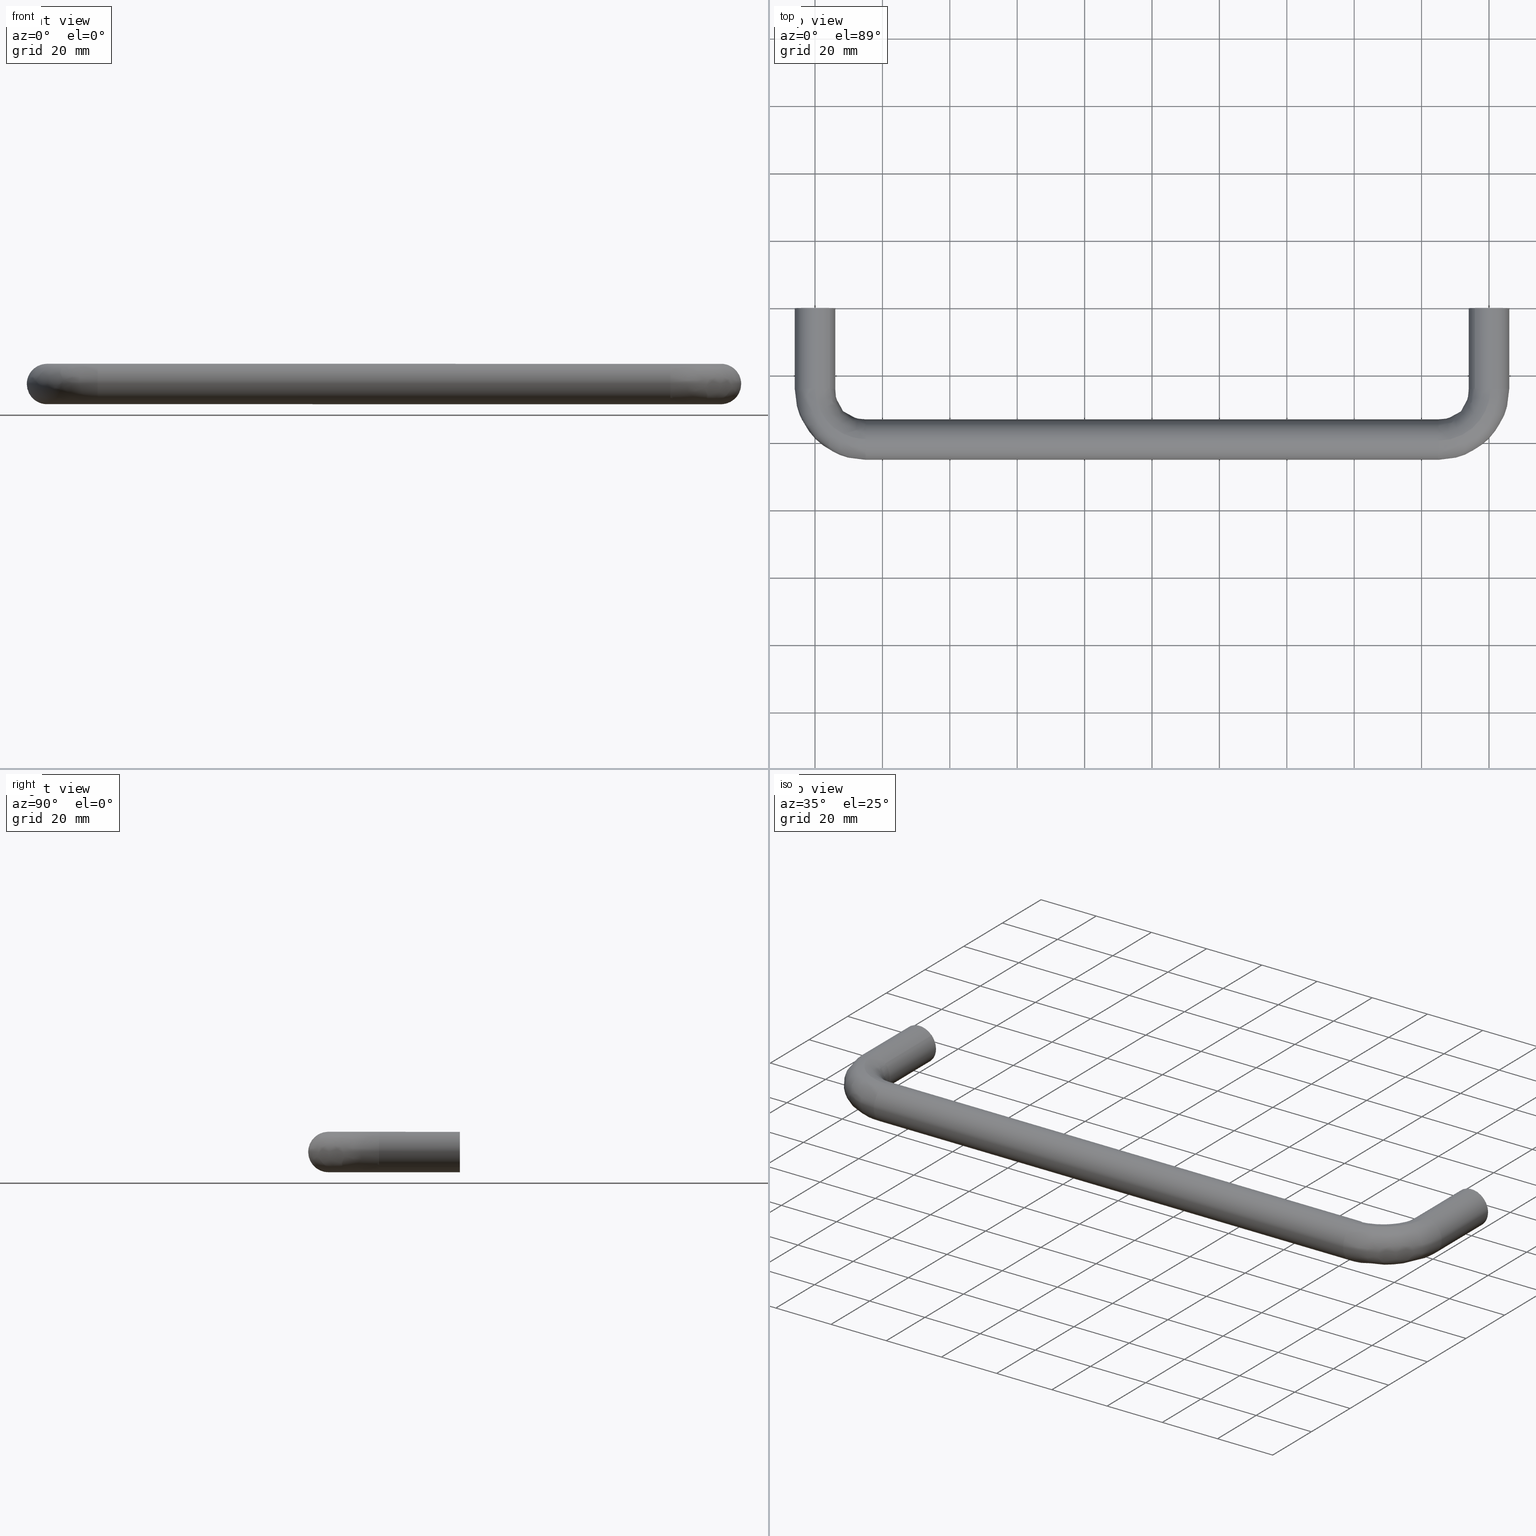
[diagram: canonical four-view strip — front | top / right | iso, engineering-drawing reading convention]
A machine part, canonical four-view strip (front | top / right | iso — engineering-drawing reading convention). The complete STEP part file that produces these views, byte-faithful:
ISO-10303-21;
HEADER;
/****************************************************************
 * Generated by software with PDE/Lib inside                    *
 * PDElib Version 4.4.1-0003, patched  Thursday August 19 11:58 *
 * International Technegroup Inc. (www.iti-oh.com)              *
 ****************************************************************/
FILE_DESCRIPTION((''),'2;1');
FILE_NAME('','2005-10-07T11:53:04',(''),(''),'','CADfix','');
FILE_SCHEMA(('AUTOMOTIVE_DESIGN'));
ENDSEC;
DATA;
#5=APPLICATION_CONTEXT('automotive design');
#6=APPLICATION_PROTOCOL_DEFINITION('Draft International Standard','automotive_design',1998,#5);
#7=PRODUCT_CONTEXT('None',#5,'mechanical');
#8=PRODUCT('pull','','None',(#7));
#9=PRODUCT_RELATED_PRODUCT_CATEGORY('part','description',(#8));
#10=PRODUCT_DEFINITION_FORMATION('None','None',#8);
#11=PRODUCT_DEFINITION_CONTEXT('part definition',#5,'design');
#12=PRODUCT_DEFINITION('None','None',#10,#11);
#18=(NAMED_UNIT(*)PLANE_ANGLE_UNIT()SI_UNIT($,.RADIAN.));
#19=DIMENSIONAL_EXPONENTS(0.0,0.0,0.0,0.0,0.0,0.0,0.0);
#20=PLANE_ANGLE_MEASURE_WITH_UNIT(PLANE_ANGLE_MEASURE(0.017453292500000),#18);
#24=(CONVERSION_BASED_UNIT('DEGREE',#20)NAMED_UNIT(#19)PLANE_ANGLE_UNIT());
#28=(NAMED_UNIT(*)SI_UNIT($,.STERADIAN.)SOLID_ANGLE_UNIT());
#32=(LENGTH_UNIT()NAMED_UNIT(*)SI_UNIT(.MILLI.,.METRE.));
#34=UNCERTAINTY_MEASURE_WITH_UNIT(LENGTH_MEASURE(0.001000000000000),#32,'DISTANCE_ACCURACY_VALUE','');
#36=(GEOMETRIC_REPRESENTATION_CONTEXT(3)GLOBAL_UNCERTAINTY_ASSIGNED_CONTEXT((#34))GLOBAL_UNIT_ASSIGNED_CONTEXT((#24,#28,#32))REPRESENTATION_CONTEXT('None','None'));
#37=AXIS2_PLACEMENT_3D('',#38,#39,#40);
#38=CARTESIAN_POINT('',(0.0,0.0,0.0));
#39=DIRECTION('',(0.0,0.0,1.0));
#40=DIRECTION('',(1.0,0.0,0.0));
#41=ADVANCED_BREP_SHAPE_REPRESENTATION('',(#37,#1355),#36);
#42=PRODUCT_DEFINITION_SHAPE('','',#12);
#43=SHAPE_DEFINITION_REPRESENTATION(#42,#41);
#44=CARTESIAN_POINT('',(-2.990752001199383,-20.500000000000000,0.235377287183537));
#45=CARTESIAN_POINT('',(-2.755374714015846,-20.500000000000007,3.226129288382921));
#46=CARTESIAN_POINT('',(0.235377287183537,-20.500000000000000,2.990752001199383));
#47=CARTESIAN_POINT('',(3.226129288382921,-20.500000000000007,2.755374714015846));
#48=CARTESIAN_POINT('',(2.990752001199383,-20.500000000000000,-0.235377287183537));
#49=CARTESIAN_POINT('',(-2.990752001199383,0.512500000000003,0.235377287183537));
#50=CARTESIAN_POINT('',(-2.755374714015846,0.512500000000003,3.226129288382921));
#51=CARTESIAN_POINT('',(0.235377287183537,0.512500000000003,2.990752001199383));
#52=CARTESIAN_POINT('',(3.226129288382921,0.512500000000003,2.755374714015846));
#53=CARTESIAN_POINT('',(2.990752001199383,0.512500000000003,-0.235377287183537));
#61=(BOUNDED_SURFACE()B_SPLINE_SURFACE(2,1,((#44,#49),(#45,#50),(#46,#51),(#47,#52),(#48,#53)),.UNSPECIFIED.,.F.,.F.,.U.)B_SPLINE_SURFACE_WITH_KNOTS((3,2,3),(2,2),(0.0,4.970562748477140,9.941125496954280),(0.0,21.012500000000010),.UNSPECIFIED.)GEOMETRIC_REPRESENTATION_ITEM()RATIONAL_B_SPLINE_SURFACE(((1.0,1.0),(0.707106781186548,0.707106781186548),(1.0,1.0),(0.707106781186548,0.707106781186548),(1.0,1.0)))REPRESENTATION_ITEM('')SURFACE());
#62=CARTESIAN_POINT('',(0.0,-20.0,3.0));
#63=VERTEX_POINT('',#62);
#64=CARTESIAN_POINT('',(-2.990752001091517,-20.0,0.235377288554111));
#65=VERTEX_POINT('',#64);
#66=CARTESIAN_POINT('',(0.0,-20.0,3.0));
#67=CARTESIAN_POINT('',(-2.773171472425033,-19.999999999999993,3.000000000000000));
#68=CARTESIAN_POINT('',(-2.990752001091517,-19.999999999999996,0.235377288554111));
#76=(BOUNDED_CURVE()B_SPLINE_CURVE(2,(#66,#67,#68),.UNSPECIFIED.,.F.,.U.)B_SPLINE_CURVE_WITH_KNOTS((3,3),(0.0,0.236331300475649),.UNSPECIFIED.)CURVE()GEOMETRIC_REPRESENTATION_ITEM()RATIONAL_B_SPLINE_CURVE((1.0,0.723120658789272,0.969723355843923))REPRESENTATION_ITEM(''));
#77=EDGE_CURVE('',#63,#65,#76,.T.);
#78=ORIENTED_EDGE('',*,*,#77,.T.);
#79=CARTESIAN_POINT('',(-2.990752001091517,-5.551115E-017,0.235377288554111));
#80=VERTEX_POINT('',#79);
#81=CARTESIAN_POINT('',(-2.990752001091517,-20.0,0.235377288554111));
#82=CARTESIAN_POINT('',(-2.990752001091517,-5.551115E-017,0.235377288554111));
#83=QUASI_UNIFORM_CURVE('',1,(#81,#82),.UNSPECIFIED.,.F.,.U.);
#84=EDGE_CURVE('',#65,#80,#83,.T.);
#85=ORIENTED_EDGE('',*,*,#84,.T.);
#86=CARTESIAN_POINT('',(0.0,0.0,3.0));
#87=VERTEX_POINT('',#86);
#88=CARTESIAN_POINT('',(0.0,0.0,3.0));
#89=CARTESIAN_POINT('',(-2.773171472425032,0.0,3.000000000000000));
#90=CARTESIAN_POINT('',(-2.990752001091517,-5.551115E-017,0.235377288554111));
#98=(BOUNDED_CURVE()B_SPLINE_CURVE(2,(#88,#89,#90),.UNSPECIFIED.,.F.,.U.)B_SPLINE_CURVE_WITH_KNOTS((3,3),(0.0,0.236331300475649),.UNSPECIFIED.)CURVE()GEOMETRIC_REPRESENTATION_ITEM()RATIONAL_B_SPLINE_CURVE((1.0,0.723120658789272,0.969723355843922))REPRESENTATION_ITEM(''));
#99=EDGE_CURVE('',#87,#80,#98,.T.);
#100=ORIENTED_EDGE('',*,*,#99,.F.);
#101=CARTESIAN_POINT('',(2.990752001091517,-5.551115E-017,-0.235377288554112));
#102=VERTEX_POINT('',#101);
#103=CARTESIAN_POINT('',(2.990752001091517,-5.551115E-017,-0.235377288554112));
#104=CARTESIAN_POINT('',(3.0,0.0,-0.117870322399946));
#105=CARTESIAN_POINT('',(3.0,0.0,0.0));
#106=CARTESIAN_POINT('',(3.0,0.0,3.0));
#107=CARTESIAN_POINT('',(0.0,0.0,3.0));
#115=(BOUNDED_CURVE()B_SPLINE_CURVE(2,(#103,#104,#105,#106,#107),.UNSPECIFIED.,.F.,.U.)B_SPLINE_CURVE_WITH_KNOTS((3,2,3),(0.736331300475649,0.750000000000000,1.0),.UNSPECIFIED.)CURVE()GEOMETRIC_REPRESENTATION_ITEM()RATIONAL_B_SPLINE_CURVE((0.969723355843922,0.983986122397276,1.0,0.707106781186548,1.0))REPRESENTATION_ITEM(''));
#116=EDGE_CURVE('',#102,#87,#115,.T.);
#117=ORIENTED_EDGE('',*,*,#116,.F.);
#118=CARTESIAN_POINT('',(2.990752001091517,-20.0,-0.235377288554110));
#119=VERTEX_POINT('',#118);
#120=CARTESIAN_POINT('',(2.990752001091517,-20.0,-0.235377288554110));
#121=CARTESIAN_POINT('',(2.990752001091517,-5.551115E-017,-0.235377288554112));
#122=QUASI_UNIFORM_CURVE('',1,(#120,#121),.UNSPECIFIED.,.F.,.U.);
#123=EDGE_CURVE('',#119,#102,#122,.T.);
#124=ORIENTED_EDGE('',*,*,#123,.F.);
#125=CARTESIAN_POINT('',(2.990752001091516,-20.000000000000004,-0.235377288554110));
#126=CARTESIAN_POINT('',(3.0,-20.0,-0.117870322399944));
#127=CARTESIAN_POINT('',(3.0,-20.0,0.0));
#128=CARTESIAN_POINT('',(3.0,-19.999999999999996,3.0));
#129=CARTESIAN_POINT('',(0.0,-20.0,3.0));
#137=(BOUNDED_CURVE()B_SPLINE_CURVE(2,(#125,#126,#127,#128,#129),.UNSPECIFIED.,.F.,.U.)B_SPLINE_CURVE_WITH_KNOTS((3,2,3),(0.736331300475649,0.750000000000000,1.0),.UNSPECIFIED.)CURVE()GEOMETRIC_REPRESENTATION_ITEM()RATIONAL_B_SPLINE_CURVE((0.969723355843923,0.983986122397276,1.0,0.707106781186548,1.0))REPRESENTATION_ITEM(''));
#138=EDGE_CURVE('',#119,#63,#137,.T.);
#139=ORIENTED_EDGE('',*,*,#138,.T.);
#140=EDGE_LOOP('',(#78,#85,#100,#117,#124,#139));
#141=FACE_OUTER_BOUND('',#140,.T.);
#142=ADVANCED_FACE('',(#141),#61,.F.);
#143=CARTESIAN_POINT('',(2.990752001199383,-20.500000000000000,-0.235377287183537));
#144=CARTESIAN_POINT('',(2.755374714015846,-20.500000000000007,-3.226129288382921));
#145=CARTESIAN_POINT('',(-0.235377287183537,-20.500000000000000,-2.990752001199383));
#146=CARTESIAN_POINT('',(-3.226129288382921,-20.500000000000007,-2.755374714015846));
#147=CARTESIAN_POINT('',(-2.990752001199383,-20.500000000000000,0.235377287183537));
#148=CARTESIAN_POINT('',(2.990752001199383,0.512500000000003,-0.235377287183537));
#149=CARTESIAN_POINT('',(2.755374714015846,0.512500000000003,-3.226129288382921));
#150=CARTESIAN_POINT('',(-0.235377287183537,0.512500000000003,-2.990752001199383));
#151=CARTESIAN_POINT('',(-3.226129288382921,0.512500000000003,-2.755374714015846));
#152=CARTESIAN_POINT('',(-2.990752001199383,0.512500000000003,0.235377287183537));
#160=(BOUNDED_SURFACE()B_SPLINE_SURFACE(2,1,((#143,#148),(#144,#149),(#145,#150),(#146,#151),(#147,#152)),.UNSPECIFIED.,.F.,.F.,.U.)B_SPLINE_SURFACE_WITH_KNOTS((3,2,3),(2,2),(0.0,4.970562748477140,9.941125496954280),(0.0,21.012500000000010),.UNSPECIFIED.)GEOMETRIC_REPRESENTATION_ITEM()RATIONAL_B_SPLINE_SURFACE(((1.0,1.0),(0.707106781186548,0.707106781186548),(1.0,1.0),(0.707106781186548,0.707106781186548),(1.0,1.0)))REPRESENTATION_ITEM('')SURFACE());
#161=CARTESIAN_POINT('',(0.0,-20.0,-3.0));
#162=VERTEX_POINT('',#161);
#163=CARTESIAN_POINT('',(-2.990752001091517,-19.999999999999996,0.235377288554111));
#164=CARTESIAN_POINT('',(-3.000000000000000,-20.0,0.117870322399944));
#165=CARTESIAN_POINT('',(-3.0,-20.0,0.0));
#166=CARTESIAN_POINT('',(-3.0,-19.999999999999996,-3.0));
#167=CARTESIAN_POINT('',(0.0,-20.0,-3.0));
#175=(BOUNDED_CURVE()B_SPLINE_CURVE(2,(#163,#164,#165,#166,#167),.UNSPECIFIED.,.F.,.U.)B_SPLINE_CURVE_WITH_KNOTS((3,2,3),(0.236331300475649,0.250000000000000,0.500000000000000),.UNSPECIFIED.)CURVE()GEOMETRIC_REPRESENTATION_ITEM()RATIONAL_B_SPLINE_CURVE((0.969723355843923,0.983986122397276,1.0,0.707106781186548,1.0))REPRESENTATION_ITEM(''));
#176=EDGE_CURVE('',#65,#162,#175,.T.);
#177=ORIENTED_EDGE('',*,*,#176,.T.);
#178=CARTESIAN_POINT('',(0.0,-20.0,-3.0));
#179=CARTESIAN_POINT('',(2.773171472425040,-19.999999999999993,-3.000000000000000));
#180=CARTESIAN_POINT('',(2.990752001091517,-20.0,-0.235377288554110));
#188=(BOUNDED_CURVE()B_SPLINE_CURVE(2,(#178,#179,#180),.UNSPECIFIED.,.F.,.U.)B_SPLINE_CURVE_WITH_KNOTS((3,3),(0.500000000000000,0.736331300475650),.UNSPECIFIED.)CURVE()GEOMETRIC_REPRESENTATION_ITEM()RATIONAL_B_SPLINE_CURVE((1.0,0.723120658789271,0.969723355843924))REPRESENTATION_ITEM(''));
#189=EDGE_CURVE('',#162,#119,#188,.T.);
#190=ORIENTED_EDGE('',*,*,#189,.T.);
#191=ORIENTED_EDGE('',*,*,#123,.T.);
#192=CARTESIAN_POINT('',(0.0,0.0,-3.0));
#193=VERTEX_POINT('',#192);
#194=CARTESIAN_POINT('',(0.0,0.0,-3.0));
#195=CARTESIAN_POINT('',(2.773171472425040,0.0,-3.000000000000000));
#196=CARTESIAN_POINT('',(2.990752001091517,-5.551115E-017,-0.235377288554112));
#204=(BOUNDED_CURVE()B_SPLINE_CURVE(2,(#194,#195,#196),.UNSPECIFIED.,.F.,.U.)B_SPLINE_CURVE_WITH_KNOTS((3,3),(0.500000000000000,0.736331300475650),.UNSPECIFIED.)CURVE()GEOMETRIC_REPRESENTATION_ITEM()RATIONAL_B_SPLINE_CURVE((1.0,0.723120658789271,0.969723355843924))REPRESENTATION_ITEM(''));
#205=EDGE_CURVE('',#193,#102,#204,.T.);
#206=ORIENTED_EDGE('',*,*,#205,.F.);
#207=CARTESIAN_POINT('',(-2.990752001091517,-5.551115E-017,0.235377288554111));
#208=CARTESIAN_POINT('',(-3.000000000000000,0.0,0.117870322399945));
#209=CARTESIAN_POINT('',(-3.0,0.0,0.0));
#210=CARTESIAN_POINT('',(-3.0,0.0,-3.0));
#211=CARTESIAN_POINT('',(0.0,0.0,-3.0));
#219=(BOUNDED_CURVE()B_SPLINE_CURVE(2,(#207,#208,#209,#210,#211),.UNSPECIFIED.,.F.,.U.)B_SPLINE_CURVE_WITH_KNOTS((3,2,3),(0.236331300475649,0.250000000000000,0.500000000000000),.UNSPECIFIED.)CURVE()GEOMETRIC_REPRESENTATION_ITEM()RATIONAL_B_SPLINE_CURVE((0.969723355843923,0.983986122397276,1.0,0.707106781186548,1.0))REPRESENTATION_ITEM(''));
#220=EDGE_CURVE('',#80,#193,#219,.T.);
#221=ORIENTED_EDGE('',*,*,#220,.F.);
#222=ORIENTED_EDGE('',*,*,#84,.F.);
#223=EDGE_LOOP('',(#177,#190,#191,#206,#221,#222));
#224=FACE_OUTER_BOUND('',#223,.T.);
#225=ADVANCED_FACE('',(#224),#160,.F.);
#226=CARTESIAN_POINT('',(197.009247998800590,-20.500000000000000,0.235377287183537));
#227=CARTESIAN_POINT('',(197.244625285984230,-20.500000000000007,3.226129288382921));
#228=CARTESIAN_POINT('',(200.235377287183500,-20.500000000000000,2.990752001199383));
#229=CARTESIAN_POINT('',(203.226129288382910,-20.500000000000007,2.755374714015846));
#230=CARTESIAN_POINT('',(202.990752001199410,-20.500000000000000,-0.235377287183537));
#231=CARTESIAN_POINT('',(197.009247998800590,0.512500000000003,0.235377287183537));
#232=CARTESIAN_POINT('',(197.244625285984230,0.512500000000003,3.226129288382921));
#233=CARTESIAN_POINT('',(200.235377287183500,0.512500000000003,2.990752001199383));
#234=CARTESIAN_POINT('',(203.226129288382910,0.512500000000003,2.755374714015846));
#235=CARTESIAN_POINT('',(202.990752001199410,0.512500000000003,-0.235377287183537));
#243=(BOUNDED_SURFACE()B_SPLINE_SURFACE(2,1,((#226,#231),(#227,#232),(#228,#233),(#229,#234),(#230,#235)),.UNSPECIFIED.,.F.,.F.,.U.)B_SPLINE_SURFACE_WITH_KNOTS((3,2,3),(2,2),(0.0,4.970562748477171,9.941125496954342),(0.0,21.012500000000010),.UNSPECIFIED.)GEOMETRIC_REPRESENTATION_ITEM()RATIONAL_B_SPLINE_SURFACE(((1.0,1.0),(0.707106781186548,0.707106781186548),(1.0,1.0),(0.707106781186548,0.707106781186548),(1.0,1.0)))REPRESENTATION_ITEM('')SURFACE());
#244=CARTESIAN_POINT('',(200.0,-20.0,3.0));
#245=VERTEX_POINT('',#244);
#246=CARTESIAN_POINT('',(197.009247998908510,-20.0,0.235377288554112));
#247=VERTEX_POINT('',#246);
#248=CARTESIAN_POINT('',(200.0,-20.0,3.0));
#249=CARTESIAN_POINT('',(197.226828527575010,-20.000000000000004,3.000000000000000));
#250=CARTESIAN_POINT('',(197.009247998908480,-20.0,0.235377288554112));
#258=(BOUNDED_CURVE()B_SPLINE_CURVE(2,(#248,#249,#250),.UNSPECIFIED.,.F.,.U.)B_SPLINE_CURVE_WITH_KNOTS((3,3),(0.0,0.236331300475649),.UNSPECIFIED.)CURVE()GEOMETRIC_REPRESENTATION_ITEM()RATIONAL_B_SPLINE_CURVE((1.0,0.723120658789272,0.969723355843922))REPRESENTATION_ITEM(''));
#259=EDGE_CURVE('',#245,#247,#258,.T.);
#260=ORIENTED_EDGE('',*,*,#259,.T.);
#261=CARTESIAN_POINT('',(197.009247998908510,-5.551115E-017,0.235377288554112));
#262=VERTEX_POINT('',#261);
#263=CARTESIAN_POINT('',(197.009247998908510,-20.0,0.235377288554112));
#264=CARTESIAN_POINT('',(197.009247998908510,-5.551115E-017,0.235377288554112));
#265=QUASI_UNIFORM_CURVE('',1,(#263,#264),.UNSPECIFIED.,.F.,.U.);
#266=EDGE_CURVE('',#247,#262,#265,.T.);
#267=ORIENTED_EDGE('',*,*,#266,.T.);
#268=CARTESIAN_POINT('',(200.0,0.0,3.0));
#269=VERTEX_POINT('',#268);
#270=CARTESIAN_POINT('',(200.0,0.0,3.0));
#271=CARTESIAN_POINT('',(197.226828527575010,0.0,3.000000000000000));
#272=CARTESIAN_POINT('',(197.009247998908480,-5.551115E-017,0.235377288554112));
#280=(BOUNDED_CURVE()B_SPLINE_CURVE(2,(#270,#271,#272),.UNSPECIFIED.,.F.,.U.)B_SPLINE_CURVE_WITH_KNOTS((3,3),(0.0,0.236331300475649),.UNSPECIFIED.)CURVE()GEOMETRIC_REPRESENTATION_ITEM()RATIONAL_B_SPLINE_CURVE((1.0,0.723120658789272,0.969723355843922))REPRESENTATION_ITEM(''));
#281=EDGE_CURVE('',#269,#262,#280,.T.);
#282=ORIENTED_EDGE('',*,*,#281,.F.);
#283=CARTESIAN_POINT('',(202.990752001091490,-5.551115E-017,-0.235377288554112));
#284=VERTEX_POINT('',#283);
#285=CARTESIAN_POINT('',(202.990752001091520,-5.551115E-017,-0.235377288554112));
#286=CARTESIAN_POINT('',(203.000000000000030,0.0,-0.117870322399946));
#287=CARTESIAN_POINT('',(203.0,0.0,0.0));
#288=CARTESIAN_POINT('',(203.000000000000060,0.0,3.0));
#289=CARTESIAN_POINT('',(200.0,0.0,3.0));
#297=(BOUNDED_CURVE()B_SPLINE_CURVE(2,(#285,#286,#287,#288,#289),.UNSPECIFIED.,.F.,.U.)B_SPLINE_CURVE_WITH_KNOTS((3,2,3),(0.736331300475649,0.750000000000000,1.0),.UNSPECIFIED.)CURVE()GEOMETRIC_REPRESENTATION_ITEM()RATIONAL_B_SPLINE_CURVE((0.969723355843922,0.983986122397276,1.0,0.707106781186548,1.0))REPRESENTATION_ITEM(''));
#298=EDGE_CURVE('',#284,#269,#297,.T.);
#299=ORIENTED_EDGE('',*,*,#298,.F.);
#300=CARTESIAN_POINT('',(202.990752001091490,-20.0,-0.235377288554110));
#301=VERTEX_POINT('',#300);
#302=CARTESIAN_POINT('',(202.990752001091490,-20.0,-0.235377288554110));
#303=CARTESIAN_POINT('',(202.990752001091490,-5.551115E-017,-0.235377288554112));
#304=QUASI_UNIFORM_CURVE('',1,(#302,#303),.UNSPECIFIED.,.F.,.U.);
#305=EDGE_CURVE('',#301,#284,#304,.T.);
#306=ORIENTED_EDGE('',*,*,#305,.F.);
#307=CARTESIAN_POINT('',(202.990752001091550,-20.000000000000004,-0.235377288554110));
#308=CARTESIAN_POINT('',(202.999999999999970,-20.0,-0.117870322399944));
#309=CARTESIAN_POINT('',(203.0,-20.0,0.0));
#310=CARTESIAN_POINT('',(203.000000000000060,-19.999999999999996,3.0));
#311=CARTESIAN_POINT('',(200.0,-20.0,3.0));
#319=(BOUNDED_CURVE()B_SPLINE_CURVE(2,(#307,#308,#309,#310,#311),.UNSPECIFIED.,.F.,.U.)B_SPLINE_CURVE_WITH_KNOTS((3,2,3),(0.736331300475649,0.750000000000000,1.0),.UNSPECIFIED.)CURVE()GEOMETRIC_REPRESENTATION_ITEM()RATIONAL_B_SPLINE_CURVE((0.969723355843923,0.983986122397276,1.0,0.707106781186548,1.0))REPRESENTATION_ITEM(''));
#320=EDGE_CURVE('',#301,#245,#319,.T.);
#321=ORIENTED_EDGE('',*,*,#320,.T.);
#322=EDGE_LOOP('',(#260,#267,#282,#299,#306,#321));
#323=FACE_OUTER_BOUND('',#322,.T.);
#324=ADVANCED_FACE('',(#323),#243,.F.);
#325=CARTESIAN_POINT('',(202.990752001199410,-20.500000000000000,-0.235377287183537));
#326=CARTESIAN_POINT('',(202.755374714015890,-20.500000000000007,-3.226129288382921));
#327=CARTESIAN_POINT('',(199.764622712816500,-20.500000000000000,-2.990752001199383));
#328=CARTESIAN_POINT('',(196.773870711617040,-20.500000000000007,-2.755374714015846));
#329=CARTESIAN_POINT('',(197.009247998800590,-20.500000000000000,0.235377287183537));
#330=CARTESIAN_POINT('',(202.990752001199410,0.512500000000003,-0.235377287183537));
#331=CARTESIAN_POINT('',(202.755374714015890,0.512500000000003,-3.226129288382921));
#332=CARTESIAN_POINT('',(199.764622712816500,0.512500000000003,-2.990752001199383));
#333=CARTESIAN_POINT('',(196.773870711617040,0.512500000000003,-2.755374714015846));
#334=CARTESIAN_POINT('',(197.009247998800590,0.512500000000003,0.235377287183537));
#342=(BOUNDED_SURFACE()B_SPLINE_SURFACE(2,1,((#325,#330),(#326,#331),(#327,#332),(#328,#333),(#329,#334)),.UNSPECIFIED.,.F.,.F.,.U.)B_SPLINE_SURFACE_WITH_KNOTS((3,2,3),(2,2),(0.0,4.970562748477171,9.941125496954342),(0.0,21.012500000000010),.UNSPECIFIED.)GEOMETRIC_REPRESENTATION_ITEM()RATIONAL_B_SPLINE_SURFACE(((1.0,1.0),(0.707106781186548,0.707106781186548),(1.0,1.0),(0.707106781186548,0.707106781186548),(1.0,1.0)))REPRESENTATION_ITEM('')SURFACE());
#343=CARTESIAN_POINT('',(200.0,-20.0,-3.0));
#344=VERTEX_POINT('',#343);
#345=CARTESIAN_POINT('',(197.009247998908480,-20.0,0.235377288554112));
#346=CARTESIAN_POINT('',(196.999999999999970,-20.000000000000004,0.117870322399945));
#347=CARTESIAN_POINT('',(197.0,-20.0,0.0));
#348=CARTESIAN_POINT('',(197.000000000000060,-19.999999999999996,-3.0));
#349=CARTESIAN_POINT('',(200.0,-20.0,-3.0));
#357=(BOUNDED_CURVE()B_SPLINE_CURVE(2,(#345,#346,#347,#348,#349),.UNSPECIFIED.,.F.,.U.)B_SPLINE_CURVE_WITH_KNOTS((3,2,3),(0.236331300475649,0.250000000000000,0.500000000000000),.UNSPECIFIED.)CURVE()GEOMETRIC_REPRESENTATION_ITEM()RATIONAL_B_SPLINE_CURVE((0.969723355843922,0.983986122397276,1.0,0.707106781186548,1.0))REPRESENTATION_ITEM(''));
#358=EDGE_CURVE('',#247,#344,#357,.T.);
#359=ORIENTED_EDGE('',*,*,#358,.T.);
#360=CARTESIAN_POINT('',(200.0,-20.0,-3.0));
#361=CARTESIAN_POINT('',(202.773171472425100,-19.999999999999993,-3.000000000000000));
#362=CARTESIAN_POINT('',(202.990752001091520,-20.0,-0.235377288554110));
#370=(BOUNDED_CURVE()B_SPLINE_CURVE(2,(#360,#361,#362),.UNSPECIFIED.,.F.,.U.)B_SPLINE_CURVE_WITH_KNOTS((3,3),(0.500000000000000,0.736331300475650),.UNSPECIFIED.)CURVE()GEOMETRIC_REPRESENTATION_ITEM()RATIONAL_B_SPLINE_CURVE((1.0,0.723120658789271,0.969723355843924))REPRESENTATION_ITEM(''));
#371=EDGE_CURVE('',#344,#301,#370,.T.);
#372=ORIENTED_EDGE('',*,*,#371,.T.);
#373=ORIENTED_EDGE('',*,*,#305,.T.);
#374=CARTESIAN_POINT('',(200.0,0.0,-3.0));
#375=VERTEX_POINT('',#374);
#376=CARTESIAN_POINT('',(200.0,0.0,-3.0));
#377=CARTESIAN_POINT('',(202.773171472425100,0.0,-3.000000000000000));
#378=CARTESIAN_POINT('',(202.990752001091520,-5.551115E-017,-0.235377288554112));
#386=(BOUNDED_CURVE()B_SPLINE_CURVE(2,(#376,#377,#378),.UNSPECIFIED.,.F.,.U.)B_SPLINE_CURVE_WITH_KNOTS((3,3),(0.500000000000000,0.736331300475650),.UNSPECIFIED.)CURVE()GEOMETRIC_REPRESENTATION_ITEM()RATIONAL_B_SPLINE_CURVE((1.0,0.723120658789271,0.969723355843924))REPRESENTATION_ITEM(''));
#387=EDGE_CURVE('',#375,#284,#386,.T.);
#388=ORIENTED_EDGE('',*,*,#387,.F.);
#389=CARTESIAN_POINT('',(197.009247998908480,-5.551115E-017,0.235377288554112));
#390=CARTESIAN_POINT('',(196.999999999999970,0.0,0.117870322399945));
#391=CARTESIAN_POINT('',(197.0,0.0,0.0));
#392=CARTESIAN_POINT('',(197.000000000000060,0.0,-3.0));
#393=CARTESIAN_POINT('',(200.0,0.0,-3.0));
#401=(BOUNDED_CURVE()B_SPLINE_CURVE(2,(#389,#390,#391,#392,#393),.UNSPECIFIED.,.F.,.U.)B_SPLINE_CURVE_WITH_KNOTS((3,2,3),(0.236331300475649,0.250000000000000,0.500000000000000),.UNSPECIFIED.)CURVE()GEOMETRIC_REPRESENTATION_ITEM()RATIONAL_B_SPLINE_CURVE((0.969723355843922,0.983986122397276,1.0,0.707106781186548,1.0))REPRESENTATION_ITEM(''));
#402=EDGE_CURVE('',#262,#375,#401,.T.);
#403=ORIENTED_EDGE('',*,*,#402,.F.);
#404=ORIENTED_EDGE('',*,*,#266,.F.);
#405=EDGE_LOOP('',(#359,#372,#373,#388,#403,#404));
#406=FACE_OUTER_BOUND('',#405,.T.);
#407=ADVANCED_FACE('',(#406),#342,.F.);
#408=CARTESIAN_POINT('',(203.953817432959620,-24.600000000748739,-4.513017583261183));
#409=CARTESIAN_POINT('',(199.691933753874250,-24.600000000748739,-8.246818676816256));
#410=CARTESIAN_POINT('',(195.720497305074900,-24.600000000748739,-4.205455585799104));
#411=CARTESIAN_POINT('',(191.515041719275840,-24.600000000748739,0.074047109125984));
#412=CARTESIAN_POINT('',(195.794544414200910,-24.600000000748739,4.279502694925088));
#413=CARTESIAN_POINT('',(203.953817432959620,0.615000000018746,-4.513017583261183));
#414=CARTESIAN_POINT('',(199.691933753874250,0.615000000018746,-8.246818676816256));
#415=CARTESIAN_POINT('',(195.720497305074900,0.615000000018746,-4.205455585799104));
#416=CARTESIAN_POINT('',(191.515041719275840,0.615000000018747,0.074047109125984));
#417=CARTESIAN_POINT('',(195.794544414200910,0.615000000018747,4.279502694925088));
#425=(BOUNDED_SURFACE()B_SPLINE_SURFACE(2,1,((#408,#413),(#409,#414),(#410,#415),(#411,#416),(#412,#417)),.UNSPECIFIED.,.F.,.F.,.U.)B_SPLINE_SURFACE_WITH_KNOTS((3,2,3),(2,2),(0.0,9.543480477076107,19.484605974030391),(0.0,25.215000000767489),.UNSPECIFIED.)GEOMETRIC_REPRESENTATION_ITEM()RATIONAL_B_SPLINE_SURFACE(((0.977505800795127,0.977505800795127),(0.718822509939086,0.718822509939086),(1.0,1.0),(0.707106781186548,0.707106781186548),(1.0,1.0)))REPRESENTATION_ITEM('')SURFACE());
#426=CARTESIAN_POINT('',(203.953817432960110,-24.0,-4.513017583260728));
#427=VERTEX_POINT('',#426);
#428=CARTESIAN_POINT('',(199.924603760713890,-24.000000000228539,-5.999526265223072));
#429=VERTEX_POINT('',#428);
#430=CARTESIAN_POINT('',(203.953817432960140,-23.999999999999996,-4.513017583260728));
#431=CARTESIAN_POINT('',(202.256526673705710,-23.999999999999996,-6.000000000000001));
#432=CARTESIAN_POINT('',(200.0,-24.0,-6.0));
#433=CARTESIAN_POINT('',(199.962300392062730,-23.999999999999996,-6.0));
#434=CARTESIAN_POINT('',(199.924603760713950,-24.000000000228535,-5.999526265223072));
#442=(BOUNDED_CURVE()B_SPLINE_CURVE(2,(#430,#431,#432,#433,#434),.UNSPECIFIED.,.F.,.U.)B_SPLINE_CURVE_WITH_KNOTS((3,2,3),(0.134954720076236,0.250000000000000,0.252215704077449),.UNSPECIFIED.)CURVE()GEOMETRIC_REPRESENTATION_ITEM()RATIONAL_B_SPLINE_CURVE((0.854482180312941,0.865216070615337,1.0,0.997404141203271,0.994854295645906))REPRESENTATION_ITEM(''));
#443=EDGE_CURVE('',#427,#429,#442,.T.);
#444=ORIENTED_EDGE('',*,*,#443,.T.);
#445=CARTESIAN_POINT('',(194.0,-24.0,0.0));
#446=VERTEX_POINT('',#445);
#447=CARTESIAN_POINT('',(199.924603760713950,-24.000000000228535,-5.999526265223072));
#448=CARTESIAN_POINT('',(194.0,-24.0,-5.925071579471605));
#449=CARTESIAN_POINT('',(194.0,-24.0,0.0));
#457=(BOUNDED_CURVE()B_SPLINE_CURVE(2,(#447,#448,#449),.UNSPECIFIED.,.F.,.U.)B_SPLINE_CURVE_WITH_KNOTS((3,3),(0.252215704077449,0.500000000000000),.UNSPECIFIED.)CURVE()GEOMETRIC_REPRESENTATION_ITEM()RATIONAL_B_SPLINE_CURVE((0.994854295645906,0.709702639983276,1.0))REPRESENTATION_ITEM(''));
#458=EDGE_CURVE('',#429,#446,#457,.T.);
#459=ORIENTED_EDGE('',*,*,#458,.T.);
#460=CARTESIAN_POINT('',(195.794544533120190,-24.0,4.279502811786761));
#461=VERTEX_POINT('',#460);
#462=CARTESIAN_POINT('',(194.0,-24.0,0.0));
#463=CARTESIAN_POINT('',(194.0,-23.999999999999993,2.516009006596829));
#464=CARTESIAN_POINT('',(195.794544533120160,-24.000000000000004,4.279502811786761));
#472=(BOUNDED_CURVE()B_SPLINE_CURVE(2,(#462,#463,#464),.UNSPECIFIED.,.F.,.U.)B_SPLINE_CURVE_WITH_KNOTS((3,3),(0.500000000000000,0.626316765977055),.UNSPECIFIED.)CURVE()GEOMETRIC_REPRESENTATION_ITEM()RATIONAL_B_SPLINE_CURVE((1.0,0.852010703291499,0.853569641458491))REPRESENTATION_ITEM(''));
#473=EDGE_CURVE('',#446,#461,#472,.T.);
#474=ORIENTED_EDGE('',*,*,#473,.T.);
#475=CARTESIAN_POINT('',(195.794544531687510,2.418898E-014,4.279502810378846));
#476=VERTEX_POINT('',#475);
#477=CARTESIAN_POINT('',(195.794544533120190,-24.0,4.279502811786761));
#478=CARTESIAN_POINT('',(195.794544531687510,2.418898E-014,4.279502810378846));
#479=QUASI_UNIFORM_CURVE('',1,(#477,#478),.UNSPECIFIED.,.F.,.U.);
#480=EDGE_CURVE('',#461,#476,#479,.T.);
#481=ORIENTED_EDGE('',*,*,#480,.T.);
#482=CARTESIAN_POINT('',(194.0,2.428613E-014,0.0));
#483=VERTEX_POINT('',#482);
#484=CARTESIAN_POINT('',(194.0,2.428613E-014,0.0));
#485=CARTESIAN_POINT('',(193.999999999999970,2.428613E-014,2.516009004234950));
#486=CARTESIAN_POINT('',(195.794544531687540,2.418898E-014,4.279502810378846));
#494=(BOUNDED_CURVE()B_SPLINE_CURVE(2,(#484,#485,#486),.UNSPECIFIED.,.F.,.U.)B_SPLINE_CURVE_WITH_KNOTS((3,3),(0.500000000000000,0.626316765876024),.UNSPECIFIED.)CURVE()GEOMETRIC_REPRESENTATION_ITEM()RATIONAL_B_SPLINE_CURVE((1.0,0.852010703409864,0.853569641455998))REPRESENTATION_ITEM(''));
#495=EDGE_CURVE('',#483,#476,#494,.T.);
#496=ORIENTED_EDGE('',*,*,#495,.F.);
#497=CARTESIAN_POINT('',(203.953812656972390,2.378472E-014,-4.513021767455207));
#498=VERTEX_POINT('',#497);
#499=CARTESIAN_POINT('',(203.953812656972450,2.378472E-014,-4.513021767455208));
#500=CARTESIAN_POINT('',(202.256523049850440,2.428613E-014,-5.999999999999999));
#501=CARTESIAN_POINT('',(200.0,2.428613E-014,-6.0));
#502=CARTESIAN_POINT('',(193.999999999999940,2.428613E-014,-6.0));
#503=CARTESIAN_POINT('',(194.0,2.428613E-014,0.0));
#511=(BOUNDED_CURVE()B_SPLINE_CURVE(2,(#499,#500,#501,#502,#503),.UNSPECIFIED.,.F.,.U.)B_SPLINE_CURVE_WITH_KNOTS((3,2,3),(0.134954879930363,0.250000000000000,0.500000000000000),.UNSPECIFIED.)CURVE()GEOMETRIC_REPRESENTATION_ITEM()RATIONAL_B_SPLINE_CURVE((0.854482210142421,0.865216257896095,1.0,0.707106781186548,1.0))REPRESENTATION_ITEM(''));
#512=EDGE_CURVE('',#498,#483,#511,.T.);
#513=ORIENTED_EDGE('',*,*,#512,.F.);
#514=CARTESIAN_POINT('',(203.953817432960110,-24.0,-4.513017583260728));
#515=CARTESIAN_POINT('',(203.953812656972390,2.378472E-014,-4.513021767455207));
#516=QUASI_UNIFORM_CURVE('',1,(#514,#515),.UNSPECIFIED.,.F.,.U.);
#517=EDGE_CURVE('',#427,#498,#516,.T.);
#518=ORIENTED_EDGE('',*,*,#517,.F.);
#519=EDGE_LOOP('',(#444,#459,#474,#481,#496,#513,#518));
#520=FACE_OUTER_BOUND('',#519,.T.);
#521=ADVANCED_FACE('',(#520),#425,.T.);
#522=CARTESIAN_POINT('',(195.794544414200910,-24.600000000748739,4.279502694925088));
#523=CARTESIAN_POINT('',(200.074047109126040,-24.600000000748739,8.484958280724193));
#524=CARTESIAN_POINT('',(204.279502694925100,-24.600000000748739,4.205455585799104));
#525=CARTESIAN_POINT('',(208.484958280724130,-24.600000000748739,-0.074047109125984));
#526=CARTESIAN_POINT('',(204.205455585799090,-24.600000000748739,-4.279502694925088));
#527=CARTESIAN_POINT('',(204.082978057269060,-24.600000000748739,-4.399861027004738));
#528=CARTESIAN_POINT('',(203.953817432959620,-24.600000000748739,-4.513017583261183));
#529=CARTESIAN_POINT('',(195.794544414200910,0.615000000018747,4.279502694925088));
#530=CARTESIAN_POINT('',(200.074047109126040,0.615000000018747,8.484958280724193));
#531=CARTESIAN_POINT('',(204.279502694925100,0.615000000018746,4.205455585799104));
#532=CARTESIAN_POINT('',(208.484958280724130,0.615000000018746,-0.074047109125984));
#533=CARTESIAN_POINT('',(204.205455585799090,0.615000000018746,-4.279502694925088));
#534=CARTESIAN_POINT('',(204.082978057269060,0.615000000018746,-4.399861027004738));
#535=CARTESIAN_POINT('',(203.953817432959620,0.615000000018746,-4.513017583261183));
#543=(BOUNDED_SURFACE()B_SPLINE_SURFACE(2,1,((#522,#529),(#523,#530),(#524,#531),(#525,#532),(#526,#533),(#527,#534),(#528,#535)),.UNSPECIFIED.,.F.,.F.,.U.)B_SPLINE_SURFACE_WITH_KNOTS((3,2,2,3),(2,2),(0.0,9.941125496954337,19.882250993908670,20.279896013786850),(0.0,25.215000000767489),.UNSPECIFIED.)GEOMETRIC_REPRESENTATION_ITEM()RATIONAL_B_SPLINE_SURFACE(((1.0,1.0),(0.707106781186548,0.707106781186548),(1.0,1.0),(0.707106781186548,0.707106781186548),(1.0,1.0),(0.988284271247462,0.988284271247462),(0.977505800795127,0.977505800795127)))REPRESENTATION_ITEM('')SURFACE());
#544=CARTESIAN_POINT('',(206.0,-24.0,0.0));
#545=VERTEX_POINT('',#544);
#546=CARTESIAN_POINT('',(206.0,-24.0,0.0));
#547=CARTESIAN_POINT('',(205.999999999999970,-24.000000000000004,-2.720373935119238));
#548=CARTESIAN_POINT('',(203.953817432960140,-23.999999999999996,-4.513017583260728));
#556=(BOUNDED_CURVE()B_SPLINE_CURVE(2,(#546,#547,#548),.UNSPECIFIED.,.F.,.U.)B_SPLINE_CURVE_WITH_KNOTS((3,3),(0.0,0.134954720076236),.UNSPECIFIED.)CURVE()GEOMETRIC_REPRESENTATION_ITEM()RATIONAL_B_SPLINE_CURVE((1.0,0.841890710571211,0.854482180312941))REPRESENTATION_ITEM(''));
#557=EDGE_CURVE('',#545,#427,#556,.T.);
#558=ORIENTED_EDGE('',*,*,#557,.T.);
#559=ORIENTED_EDGE('',*,*,#517,.T.);
#560=CARTESIAN_POINT('',(206.0,2.428613E-014,0.0));
#561=VERTEX_POINT('',#560);
#562=CARTESIAN_POINT('',(206.0,2.428613E-014,0.0));
#563=CARTESIAN_POINT('',(205.999999999999970,2.428613E-014,-2.720377762562457));
#564=CARTESIAN_POINT('',(203.953812656972450,2.378472E-014,-4.513021767455208));
#572=(BOUNDED_CURVE()B_SPLINE_CURVE(2,(#562,#563,#564),.UNSPECIFIED.,.F.,.U.)B_SPLINE_CURVE_WITH_KNOTS((3,3),(0.0,0.134954879930363),.UNSPECIFIED.)CURVE()GEOMETRIC_REPRESENTATION_ITEM()RATIONAL_B_SPLINE_CURVE((1.0,0.841890523290453,0.854482210142421))REPRESENTATION_ITEM(''));
#573=EDGE_CURVE('',#561,#498,#572,.T.);
#574=ORIENTED_EDGE('',*,*,#573,.F.);
#575=CARTESIAN_POINT('',(195.794544531687540,2.418898E-014,4.279502810378846));
#576=CARTESIAN_POINT('',(197.545335383723200,2.428613E-014,6.0));
#577=CARTESIAN_POINT('',(200.0,2.428613E-014,6.0));
#578=CARTESIAN_POINT('',(206.0,2.428613E-014,6.0));
#579=CARTESIAN_POINT('',(206.0,2.428613E-014,0.0));
#587=(BOUNDED_CURVE()B_SPLINE_CURVE(2,(#575,#576,#577,#578,#579),.UNSPECIFIED.,.F.,.U.)B_SPLINE_CURVE_WITH_KNOTS((3,2,3),(0.626316765876024,0.750000000000000,1.0),.UNSPECIFIED.)CURVE()GEOMETRIC_REPRESENTATION_ITEM()RATIONAL_B_SPLINE_CURVE((0.853569641455998,0.855096077776684,1.0,0.707106781186548,1.0))REPRESENTATION_ITEM(''));
#588=EDGE_CURVE('',#476,#561,#587,.T.);
#589=ORIENTED_EDGE('',*,*,#588,.F.);
#590=ORIENTED_EDGE('',*,*,#480,.F.);
#591=CARTESIAN_POINT('',(200.418399512634010,-24.000000000730470,5.985394042820203));
#592=VERTEX_POINT('',#591);
#593=CARTESIAN_POINT('',(195.794544533120160,-24.000000000000004,4.279502811786761));
#594=CARTESIAN_POINT('',(197.545335386068050,-24.000000000000007,6.000000000000001));
#595=CARTESIAN_POINT('',(200.0,-24.0,6.0));
#596=CARTESIAN_POINT('',(200.209454698441310,-24.000000000000004,6.000000000000001));
#597=CARTESIAN_POINT('',(200.418399512634040,-24.000000000730477,5.985394042820203));
#605=(BOUNDED_CURVE()B_SPLINE_CURVE(2,(#593,#594,#595,#596,#597),.UNSPECIFIED.,.F.,.U.)B_SPLINE_CURVE_WITH_KNOTS((3,2,3),(0.626316765977056,0.750000000000000,0.762166313647692),.UNSPECIFIED.)CURVE()GEOMETRIC_REPRESENTATION_ITEM()RATIONAL_B_SPLINE_CURVE((0.853569641458491,0.855096077895049,1.0,0.985746276938534,0.972879876000374))REPRESENTATION_ITEM(''));
#606=EDGE_CURVE('',#461,#592,#605,.T.);
#607=ORIENTED_EDGE('',*,*,#606,.T.);
#608=CARTESIAN_POINT('',(200.418399512634010,-24.000000000730470,5.985394042820203));
#609=CARTESIAN_POINT('',(206.000000000000030,-24.000000000000011,5.595221077637180));
#610=CARTESIAN_POINT('',(206.0,-24.0,0.0));
#618=(BOUNDED_CURVE()B_SPLINE_CURVE(2,(#608,#609,#610),.UNSPECIFIED.,.F.,.U.)B_SPLINE_CURVE_WITH_KNOTS((3,3),(0.762166313647692,1.0),.UNSPECIFIED.)CURVE()GEOMETRIC_REPRESENTATION_ITEM()RATIONAL_B_SPLINE_CURVE((0.972879876000373,0.721360504248014,1.0))REPRESENTATION_ITEM(''));
#619=EDGE_CURVE('',#592,#545,#618,.T.);
#620=ORIENTED_EDGE('',*,*,#619,.T.);
#621=EDGE_LOOP('',(#558,#559,#574,#589,#590,#607,#620));
#622=FACE_OUTER_BOUND('',#621,.T.);
#623=ADVANCED_FACE('',(#622),#543,.T.);
#624=CARTESIAN_POINT('',(10.749999999235488,-33.626367044185031,2.669095138090656));
#625=CARTESIAN_POINT('',(10.749999999235490,-34.027321464704933,3.476328217622891));
#626=CARTESIAN_POINT('',(10.749999999235490,-34.647753773926283,4.130127454162523));
#627=CARTESIAN_POINT('',(10.749999999235490,-38.777881228088788,8.482373680236247));
#628=CARTESIAN_POINT('',(10.749999999235490,-43.130127454162519,4.352246226073724));
#629=CARTESIAN_POINT('',(10.749999999235490,-47.482373680236243,0.222118771911202));
#630=CARTESIAN_POINT('',(10.749999999235490,-43.352246226073717,-4.130127454162523));
#631=CARTESIAN_POINT('',(10.749999999235488,-39.222118771911205,-8.482373680236247));
#632=CARTESIAN_POINT('',(10.749999999235490,-34.869872545837481,-4.352246226073724));
#633=CARTESIAN_POINT('',(189.356250001950540,-33.626367044184988,2.669095138090656));
#634=CARTESIAN_POINT('',(189.356250001950510,-34.027321464704897,3.476328217622891));
#635=CARTESIAN_POINT('',(189.356250001950510,-34.647753773926247,4.130127454162523));
#636=CARTESIAN_POINT('',(189.356250001950490,-38.777881228088773,8.482373680236247));
#637=CARTESIAN_POINT('',(189.356250001950510,-43.130127454162491,4.352246226073724));
#638=CARTESIAN_POINT('',(189.356250001950490,-47.482373680236208,0.222118771911202));
#639=CARTESIAN_POINT('',(189.356250001950510,-43.352246226073703,-4.130127454162523));
#640=CARTESIAN_POINT('',(189.356250001950490,-39.222118771911184,-8.482373680236247));
#641=CARTESIAN_POINT('',(189.356250001950510,-34.869872545837453,-4.352246226073724));
#649=(BOUNDED_SURFACE()B_SPLINE_SURFACE(2,1,((#624,#633),(#625,#634),(#626,#635),(#627,#636),(#628,#637),(#629,#638),(#630,#639),(#631,#640),(#632,#641)),.UNSPECIFIED.,.F.,.F.,.U.)B_SPLINE_SURFACE_WITH_KNOTS((3,2,2,2,3),(2,2),(0.0,1.988225099390856,11.929350596345140,21.870476093299420,31.811601590253701),(0.0,178.606250002715090),.UNSPECIFIED.)GEOMETRIC_REPRESENTATION_ITEM()RATIONAL_B_SPLINE_SURFACE(((0.906274169979695,0.906274169979695),(0.941421356237309,0.941421356237309),(1.0,1.0),(0.707106781186548,0.707106781186548),(1.0,1.0),(0.707106781186548,0.707106781186548),(1.0,1.0),(0.707106781186548,0.707106781186548),(1.0,1.0)))REPRESENTATION_ITEM('')SURFACE());
#650=CARTESIAN_POINT('',(185.0,-33.626367044212650,2.669095138146304));
#651=VERTEX_POINT('',#650);
#652=CARTESIAN_POINT('',(185.000000001884300,-39.418399516554373,5.985394042546160));
#653=VERTEX_POINT('',#652);
#654=CARTESIAN_POINT('',(184.999999999999970,-33.626367044212650,2.669095138146304));
#655=CARTESIAN_POINT('',(185.000000000000060,-35.280834709901974,6.000000000000001));
#656=CARTESIAN_POINT('',(185.0,-39.0,6.0));
#657=CARTESIAN_POINT('',(185.000000000000030,-39.209454702375979,6.0));
#658=CARTESIAN_POINT('',(185.000000001884330,-39.418399516554366,5.985394042546160));
#666=(BOUNDED_CURVE()B_SPLINE_CURVE(2,(#654,#655,#656,#657,#658),.UNSPECIFIED.,.F.,.U.)B_SPLINE_CURVE_WITH_KNOTS((3,2,3),(0.575619190625607,0.750000000000000,0.762166313872982),.UNSPECIFIED.)CURVE()GEOMETRIC_REPRESENTATION_ITEM()RATIONAL_B_SPLINE_CURVE((0.876408099965586,0.795700173772156,1.0,0.985746276674590,0.972879875523864))REPRESENTATION_ITEM(''));
#667=EDGE_CURVE('',#651,#653,#666,.T.);
#668=ORIENTED_EDGE('',*,*,#667,.F.);
#669=CARTESIAN_POINT('',(14.999999999962130,-33.626367044218853,2.669095138143554));
#670=VERTEX_POINT('',#669);
#671=CARTESIAN_POINT('',(14.999999999962130,-33.626367044218853,2.669095138143554));
#672=CARTESIAN_POINT('',(185.0,-33.626367044212650,2.669095138146304));
#673=QUASI_UNIFORM_CURVE('',1,(#671,#672),.UNSPECIFIED.,.F.,.U.);
#674=EDGE_CURVE('',#670,#651,#673,.T.);
#675=ORIENTED_EDGE('',*,*,#674,.F.);
#676=CARTESIAN_POINT('',(14.999999999641719,-38.924603760555939,5.999526265221087));
#677=VERTEX_POINT('',#676);
#678=CARTESIAN_POINT('',(14.999999999962130,-33.626367044218846,2.669095138143554));
#679=CARTESIAN_POINT('',(14.999999999863466,-35.257710391988013,5.953444298289303));
#680=CARTESIAN_POINT('',(14.999999999641721,-38.924603760555939,5.999526265221087));
#688=(BOUNDED_CURVE()B_SPLINE_CURVE(2,(#678,#679,#680),.UNSPECIFIED.,.F.,.U.)B_SPLINE_CURVE_WITH_KNOTS((3,3),(0.575619190625443,0.747784295913289),.UNSPECIFIED.)CURVE()GEOMETRIC_REPRESENTATION_ITEM()RATIONAL_B_SPLINE_CURVE((0.876408099965738,0.796725658643487,0.994854295624589))REPRESENTATION_ITEM(''));
#689=EDGE_CURVE('',#670,#677,#688,.T.);
#690=ORIENTED_EDGE('',*,*,#689,.T.);
#691=CARTESIAN_POINT('',(15.0,-45.0,0.0));
#692=VERTEX_POINT('',#691);
#693=CARTESIAN_POINT('',(14.999999999641719,-38.924603760555939,5.999526265221088));
#694=CARTESIAN_POINT('',(14.999999999999995,-38.962300391904698,5.999999999999999));
#695=CARTESIAN_POINT('',(15.0,-39.0,6.0));
#696=CARTESIAN_POINT('',(14.999999999999995,-45.0,6.0));
#697=CARTESIAN_POINT('',(15.0,-45.0,0.0));
#705=(BOUNDED_CURVE()B_SPLINE_CURVE(2,(#693,#694,#695,#696,#697),.UNSPECIFIED.,.F.,.U.)B_SPLINE_CURVE_WITH_KNOTS((3,2,3),(0.747784295913290,0.750000000000000,1.0),.UNSPECIFIED.)CURVE()GEOMETRIC_REPRESENTATION_ITEM()RATIONAL_B_SPLINE_CURVE((0.994854295624590,0.997404141192421,1.0,0.707106781186548,1.0))REPRESENTATION_ITEM(''));
#706=EDGE_CURVE('',#677,#692,#705,.T.);
#707=ORIENTED_EDGE('',*,*,#706,.T.);
#708=CARTESIAN_POINT('',(14.999999999300099,-39.418399512873421,-5.985394042803470));
#709=VERTEX_POINT('',#708);
#710=CARTESIAN_POINT('',(15.0,-45.0,0.0));
#711=CARTESIAN_POINT('',(15.000000000000005,-45.000000000000007,-5.595221077188548));
#712=CARTESIAN_POINT('',(14.999999999300096,-39.418399512873421,-5.985394042803470));
#720=(BOUNDED_CURVE()B_SPLINE_CURVE(2,(#710,#711,#712),.UNSPECIFIED.,.F.,.U.)B_SPLINE_CURVE_WITH_KNOTS((3,3),(0.0,0.237833686338552),.UNSPECIFIED.)CURVE()GEOMETRIC_REPRESENTATION_ITEM()RATIONAL_B_SPLINE_CURVE((1.0,0.721360504264130,0.972879875971277))REPRESENTATION_ITEM(''));
#721=EDGE_CURVE('',#692,#709,#720,.T.);
#722=ORIENTED_EDGE('',*,*,#721,.T.);
#723=CARTESIAN_POINT('',(15.0,-34.869874609136403,-4.352248184069436));
#724=VERTEX_POINT('',#723);
#725=CARTESIAN_POINT('',(14.999999999300098,-39.418399512873421,-5.985394042803470));
#726=CARTESIAN_POINT('',(15.000000000000002,-39.209454698681569,-6.000000000000001));
#727=CARTESIAN_POINT('',(15.0,-39.0,-6.0));
#728=CARTESIAN_POINT('',(15.000000000000005,-36.606244372761751,-6.000000000000002));
#729=CARTESIAN_POINT('',(15.000000000000002,-34.869874609136403,-4.352248184069437));
#737=(BOUNDED_CURVE()B_SPLINE_CURVE(2,(#725,#726,#727,#728,#729),.UNSPECIFIED.,.F.,.U.)B_SPLINE_CURVE_WITH_KNOTS((3,2,3),(0.237833686338552,0.250000000000000,0.371049455114185),.UNSPECIFIED.)CURVE()GEOMETRIC_REPRESENTATION_ITEM()RATIONAL_B_SPLINE_CURVE((0.972879875971277,0.985746276922417,1.0,0.858181741823967,0.853699666667547))REPRESENTATION_ITEM(''));
#738=EDGE_CURVE('',#709,#724,#737,.T.);
#739=ORIENTED_EDGE('',*,*,#738,.T.);
#740=CARTESIAN_POINT('',(184.999999999982690,-34.869872749249417,-4.352246419063802));
#741=VERTEX_POINT('',#740);
#742=CARTESIAN_POINT('',(15.0,-34.869874609136403,-4.352248184069436));
#743=CARTESIAN_POINT('',(184.999999999982690,-34.869872749249417,-4.352246419063802));
#744=QUASI_UNIFORM_CURVE('',1,(#742,#743),.UNSPECIFIED.,.F.,.U.);
#745=EDGE_CURVE('',#724,#741,#744,.T.);
#746=ORIENTED_EDGE('',*,*,#745,.T.);
#747=CARTESIAN_POINT('',(184.999999999945200,-38.924603760424773,-5.999526265219439));
#748=VERTEX_POINT('',#747);
#749=CARTESIAN_POINT('',(184.999999999945260,-38.924603760424773,-5.999526265219439));
#750=CARTESIAN_POINT('',(184.999999999966970,-36.574623301234553,-5.969993985083934));
#751=CARTESIAN_POINT('',(184.999999999982720,-34.869872749249431,-4.352246419063802));
#759=(BOUNDED_CURVE()B_SPLINE_CURVE(2,(#749,#750,#751),.UNSPECIFIED.,.F.,.U.)B_SPLINE_CURVE_WITH_KNOTS((3,3),(0.252215704094400,0.371049512555461),.UNSPECIFIED.)CURVE()GEOMETRIC_REPRESENTATION_ITEM()RATIONAL_B_SPLINE_CURVE((0.994854295606891,0.858099635266025,0.853699662413844))REPRESENTATION_ITEM(''));
#760=EDGE_CURVE('',#748,#741,#759,.T.);
#761=ORIENTED_EDGE('',*,*,#760,.F.);
#762=CARTESIAN_POINT('',(185.0,-45.0,0.0));
#763=VERTEX_POINT('',#762);
#764=CARTESIAN_POINT('',(185.0,-45.0,0.0));
#765=CARTESIAN_POINT('',(185.0,-45.0,-6.0));
#766=CARTESIAN_POINT('',(185.0,-39.0,-6.0));
#767=CARTESIAN_POINT('',(184.999999999999970,-38.962300391773532,-6.000000000000001));
#768=CARTESIAN_POINT('',(184.999999999945170,-38.924603760424780,-5.999526265219439));
#776=(BOUNDED_CURVE()B_SPLINE_CURVE(2,(#764,#765,#766,#767,#768),.UNSPECIFIED.,.F.,.U.)B_SPLINE_CURVE_WITH_KNOTS((3,2,3),(0.0,0.250000000000000,0.252215704094400),.UNSPECIFIED.)CURVE()GEOMETRIC_REPRESENTATION_ITEM()RATIONAL_B_SPLINE_CURVE((1.0,0.707106781186548,1.0,0.997404141183412,0.994854295606890))REPRESENTATION_ITEM(''));
#777=EDGE_CURVE('',#763,#748,#776,.T.);
#778=ORIENTED_EDGE('',*,*,#777,.F.);
#779=CARTESIAN_POINT('',(185.000000001884330,-39.418399516554366,5.985394042546160));
#780=CARTESIAN_POINT('',(184.999999999999970,-45.0,5.595221070289776));
#781=CARTESIAN_POINT('',(185.0,-45.0,0.0));
#789=(BOUNDED_CURVE()B_SPLINE_CURVE(2,(#779,#780,#781),.UNSPECIFIED.,.F.,.U.)B_SPLINE_CURVE_WITH_KNOTS((3,3),(0.762166313872982,1.0),.UNSPECIFIED.)CURVE()GEOMETRIC_REPRESENTATION_ITEM()RATIONAL_B_SPLINE_CURVE((0.972879875523864,0.721360504511958,1.0))REPRESENTATION_ITEM(''));
#790=EDGE_CURVE('',#653,#763,#789,.T.);
#791=ORIENTED_EDGE('',*,*,#790,.F.);
#792=EDGE_LOOP('',(#668,#675,#690,#707,#722,#739,#746,#761,#778,#791));
#793=FACE_OUTER_BOUND('',#792,.T.);
#794=ADVANCED_FACE('',(#793),#649,.T.);
#795=CARTESIAN_POINT('',(10.749999999235490,-34.869872545837481,-4.352246226073724));
#796=CARTESIAN_POINT('',(10.749999999235486,-31.654449898810537,-1.300924067032585));
#797=CARTESIAN_POINT('',(10.749999999235488,-33.626367044185031,2.669095138090656));
#798=CARTESIAN_POINT('',(189.356250001950510,-34.869872545837453,-4.352246226073724));
#799=CARTESIAN_POINT('',(189.356250001950430,-31.654449898810494,-1.300924067032585));
#800=CARTESIAN_POINT('',(189.356250001950540,-33.626367044184988,2.669095138090656));
#808=(BOUNDED_SURFACE()B_SPLINE_SURFACE(2,1,((#795,#798),(#796,#799),(#797,#800)),.UNSPECIFIED.,.F.,.F.,.U.)B_SPLINE_SURFACE_WITH_KNOTS((3,3),(2,2),(0.0,7.898692343319880),(0.0,178.606250002715090),.UNSPECIFIED.)GEOMETRIC_REPRESENTATION_ITEM()RATIONAL_B_SPLINE_SURFACE(((1.0,1.0),(0.765685424949238,0.765685424949238),(0.906274169979695,0.906274169979695)))REPRESENTATION_ITEM('')SURFACE());
#809=CARTESIAN_POINT('',(185.0,-33.0,0.0));
#810=VERTEX_POINT('',#809);
#811=CARTESIAN_POINT('',(185.0,-33.0,0.0));
#812=CARTESIAN_POINT('',(185.000000000000030,-33.000000000000007,1.408043576885577));
#813=CARTESIAN_POINT('',(185.000000000000060,-33.626367044212643,2.669095138146305));
#821=(BOUNDED_CURVE()B_SPLINE_CURVE(2,(#811,#812,#813),.UNSPECIFIED.,.F.,.U.)B_SPLINE_CURVE_WITH_KNOTS((3,3),(0.500000000000000,0.575619190625607),.UNSPECIFIED.)CURVE()GEOMETRIC_REPRESENTATION_ITEM()RATIONAL_B_SPLINE_CURVE((1.0,0.911406607414392,0.876408099965587))REPRESENTATION_ITEM(''));
#822=EDGE_CURVE('',#810,#651,#821,.T.);
#823=ORIENTED_EDGE('',*,*,#822,.F.);
#824=CARTESIAN_POINT('',(184.999999999982720,-34.869872749249431,-4.352246419063802));
#825=CARTESIAN_POINT('',(184.999999999999970,-33.0,-2.577803767915576));
#826=CARTESIAN_POINT('',(185.0,-33.0,0.0));
#834=(BOUNDED_CURVE()B_SPLINE_CURVE(2,(#824,#825,#826),.UNSPECIFIED.,.F.,.U.)B_SPLINE_CURVE_WITH_KNOTS((3,3),(0.371049512555460,0.500000000000000),.UNSPECIFIED.)CURVE()GEOMETRIC_REPRESENTATION_ITEM()RATIONAL_B_SPLINE_CURVE((0.853699662413844,0.848925106659221,1.0))REPRESENTATION_ITEM(''));
#835=EDGE_CURVE('',#741,#810,#834,.T.);
#836=ORIENTED_EDGE('',*,*,#835,.F.);
#837=ORIENTED_EDGE('',*,*,#745,.F.);
#838=CARTESIAN_POINT('',(15.0,-33.0,0.0));
#839=VERTEX_POINT('',#838);
#840=CARTESIAN_POINT('',(15.000000000000002,-34.869874609136403,-4.352248184069437));
#841=CARTESIAN_POINT('',(15.000000000000005,-32.999999999999993,-2.577805120553616));
#842=CARTESIAN_POINT('',(15.0,-33.0,0.0));
#850=(BOUNDED_CURVE()B_SPLINE_CURVE(2,(#840,#841,#842),.UNSPECIFIED.,.F.,.U.)B_SPLINE_CURVE_WITH_KNOTS((3,3),(0.371049455114185,0.500000000000000),.UNSPECIFIED.)CURVE()GEOMETRIC_REPRESENTATION_ITEM()RATIONAL_B_SPLINE_CURVE((0.853699666667547,0.848925039362580,1.0))REPRESENTATION_ITEM(''));
#851=EDGE_CURVE('',#724,#839,#850,.T.);
#852=ORIENTED_EDGE('',*,*,#851,.T.);
#853=CARTESIAN_POINT('',(15.0,-33.0,0.0));
#854=CARTESIAN_POINT('',(14.999999999999996,-33.0,1.408043576882220));
#855=CARTESIAN_POINT('',(14.999999999962126,-33.626367044218846,2.669095138143554));
#863=(BOUNDED_CURVE()B_SPLINE_CURVE(2,(#853,#854,#855),.UNSPECIFIED.,.F.,.U.)B_SPLINE_CURVE_WITH_KNOTS((3,3),(0.500000000000000,0.575619190625442),.UNSPECIFIED.)CURVE()GEOMETRIC_REPRESENTATION_ITEM()RATIONAL_B_SPLINE_CURVE((1.0,0.911406607414585,0.876408099965739))REPRESENTATION_ITEM(''));
#864=EDGE_CURVE('',#839,#670,#863,.T.);
#865=ORIENTED_EDGE('',*,*,#864,.T.);
#866=ORIENTED_EDGE('',*,*,#674,.T.);
#867=EDGE_LOOP('',(#823,#836,#837,#852,#865,#866));
#868=FACE_OUTER_BOUND('',#867,.T.);
#869=ADVANCED_FACE('',(#868),#808,.T.);
#870=CARTESIAN_POINT('',(2.905318393526275,0.600000000086308,-5.249678564658782));
#871=CARTESIAN_POINT('',(3.528453658424199,0.600000000086308,-4.904818146165622));
#872=CARTESIAN_POINT('',(4.053541245693961,0.600000000086308,-4.423664020860743));
#873=CARTESIAN_POINT('',(8.477205266554705,0.600000000086308,-0.370122775166782));
#874=CARTESIAN_POINT('',(4.423664020860743,0.600000000086308,4.053541245693961));
#875=CARTESIAN_POINT('',(2.905318393526280,-24.615000003540704,-5.249678564658782));
#876=CARTESIAN_POINT('',(3.528453658424203,-24.615000003540700,-4.904818146165622));
#877=CARTESIAN_POINT('',(4.053541245693965,-24.615000003540700,-4.423664020860743));
#878=CARTESIAN_POINT('',(8.477205266554709,-24.615000003540700,-0.370122775166782));
#879=CARTESIAN_POINT('',(4.423664020860747,-24.615000003540700,4.053541245693961));
#887=(BOUNDED_SURFACE()B_SPLINE_SURFACE(2,1,((#870,#875),(#871,#876),(#872,#877),(#873,#878),(#874,#879)),.UNSPECIFIED.,.F.,.F.,.U.)B_SPLINE_SURFACE_WITH_KNOTS((3,2,3),(2,2),(0.0,1.590580079512687,11.531705576466971),(0.0,25.215000003627011),.UNSPECIFIED.)GEOMETRIC_REPRESENTATION_ITEM()RATIONAL_B_SPLINE_SURFACE(((0.921270302782944,0.921270302782944),(0.953137084989848,0.953137084989848),(1.0,1.0),(0.707106781186548,0.707106781186548),(1.0,1.0)))REPRESENTATION_ITEM('')SURFACE());
#888=CARTESIAN_POINT('',(2.905318393534327,-24.0,-5.249678564654328));
#889=VERTEX_POINT('',#888);
#890=CARTESIAN_POINT('',(6.000000000000003,-24.0,0.0));
#891=VERTEX_POINT('',#890);
#892=CARTESIAN_POINT('',(2.905318393534328,-24.0,-5.249678564654329));
#893=CARTESIAN_POINT('',(6.000000000000004,-24.000000000000004,-3.536995534122605));
#894=CARTESIAN_POINT('',(6.000000000000003,-24.0,0.0));
#902=(BOUNDED_CURVE()B_SPLINE_CURVE(2,(#892,#893,#894),.UNSPECIFIED.,.F.,.U.)B_SPLINE_CURVE_WITH_KNOTS((3,3),(0.332484288971113,0.500000000000000),.UNSPECIFIED.)CURVE()GEOMETRIC_REPRESENTATION_ITEM()RATIONAL_B_SPLINE_CURVE((0.870495137452581,0.803743136779700,1.0))REPRESENTATION_ITEM(''));
#903=EDGE_CURVE('',#889,#891,#902,.T.);
#904=ORIENTED_EDGE('',*,*,#903,.F.);
#905=CARTESIAN_POINT('',(2.905318393534791,0.0,-5.249678564654071));
#906=VERTEX_POINT('',#905);
#907=CARTESIAN_POINT('',(2.905318393534791,0.0,-5.249678564654071));
#908=CARTESIAN_POINT('',(2.905318393534327,-24.0,-5.249678564654328));
#909=QUASI_UNIFORM_CURVE('',1,(#907,#908),.UNSPECIFIED.,.F.,.U.);
#910=EDGE_CURVE('',#906,#889,#909,.T.);
#911=ORIENTED_EDGE('',*,*,#910,.F.);
#912=CARTESIAN_POINT('',(6.0,0.0,0.0));
#913=VERTEX_POINT('',#912);
#914=CARTESIAN_POINT('',(2.905318393534791,0.0,-5.249678564654071));
#915=CARTESIAN_POINT('',(5.999999999999999,0.0,-3.536995534121885));
#916=CARTESIAN_POINT('',(6.0,0.0,0.0));
#924=(BOUNDED_CURVE()B_SPLINE_CURVE(2,(#914,#915,#916),.UNSPECIFIED.,.F.,.U.)B_SPLINE_CURVE_WITH_KNOTS((3,3),(0.332484288971140,0.500000000000000),.UNSPECIFIED.)CURVE()GEOMETRIC_REPRESENTATION_ITEM()RATIONAL_B_SPLINE_CURVE((0.870495137452559,0.803743136779733,1.0))REPRESENTATION_ITEM(''));
#925=EDGE_CURVE('',#906,#913,#924,.T.);
#926=ORIENTED_EDGE('',*,*,#925,.T.);
#927=CARTESIAN_POINT('',(4.423666221885295,1.110223E-016,4.053538843694539));
#928=VERTEX_POINT('',#927);
#929=CARTESIAN_POINT('',(6.0,0.0,0.0));
#930=CARTESIAN_POINT('',(6.000000000000001,0.0,2.333270515809976));
#931=CARTESIAN_POINT('',(4.423666221885295,1.110223E-016,4.053538843694540));
#939=(BOUNDED_CURVE()B_SPLINE_CURVE(2,(#929,#930,#931),.UNSPECIFIED.,.F.,.U.)B_SPLINE_CURVE_WITH_KNOTS((3,3),(0.500000000000000,0.618415127114441),.UNSPECIFIED.)CURVE()GEOMETRIC_REPRESENTATION_ITEM()RATIONAL_B_SPLINE_CURVE((1.0,0.861268049052989,0.853959790955776))REPRESENTATION_ITEM(''));
#940=EDGE_CURVE('',#913,#928,#939,.T.);
#941=ORIENTED_EDGE('',*,*,#940,.T.);
#942=CARTESIAN_POINT('',(4.423666076306624,-24.000000000093660,4.053539002548424));
#943=VERTEX_POINT('',#942);
#944=CARTESIAN_POINT('',(4.423666221885295,1.110223E-016,4.053538843694539));
#945=CARTESIAN_POINT('',(4.423666076306624,-24.000000000093660,4.053539002548424));
#946=QUASI_UNIFORM_CURVE('',1,(#944,#945),.UNSPECIFIED.,.F.,.U.);
#947=EDGE_CURVE('',#928,#943,#946,.T.);
#948=ORIENTED_EDGE('',*,*,#947,.T.);
#949=CARTESIAN_POINT('',(6.000000000000003,-24.0,0.0));
#950=CARTESIAN_POINT('',(6.000000000000004,-24.000000000000004,2.333270639824936));
#951=CARTESIAN_POINT('',(4.423666076306624,-24.000000000093650,4.053539002548424));
#959=(BOUNDED_CURVE()B_SPLINE_CURVE(2,(#949,#950,#951),.UNSPECIFIED.,.F.,.U.)B_SPLINE_CURVE_WITH_KNOTS((3,3),(0.500000000000000,0.618415132535130),.UNSPECIFIED.)CURVE()GEOMETRIC_REPRESENTATION_ITEM()RATIONAL_B_SPLINE_CURVE((1.0,0.861268042702257,0.853959790286676))REPRESENTATION_ITEM(''));
#960=EDGE_CURVE('',#891,#943,#959,.T.);
#961=ORIENTED_EDGE('',*,*,#960,.F.);
#962=EDGE_LOOP('',(#904,#911,#926,#941,#948,#961));
#963=FACE_OUTER_BOUND('',#962,.T.);
#964=ADVANCED_FACE('',(#963),#887,.T.);
#965=CARTESIAN_POINT('',(4.423664020860743,0.600000000086308,4.053541245693961));
#966=CARTESIAN_POINT('',(0.370122775166782,0.600000000086307,8.477205266554705));
#967=CARTESIAN_POINT('',(-4.053541245693961,0.600000000086307,4.423664020860743));
#968=CARTESIAN_POINT('',(-8.477205266554705,0.600000000086306,0.370122775166782));
#969=CARTESIAN_POINT('',(-4.423664020860743,0.600000000086307,-4.053541245693961));
#970=CARTESIAN_POINT('',(-1.230325250919644,0.600000000086307,-7.538458992124772));
#971=CARTESIAN_POINT('',(2.905318393526275,0.600000000086308,-5.249678564658782));
#972=CARTESIAN_POINT('',(4.423664020860747,-24.615000003540700,4.053541245693961));
#973=CARTESIAN_POINT('',(0.370122775166785,-24.615000003540700,8.477205266554705));
#974=CARTESIAN_POINT('',(-4.053541245693958,-24.615000003540700,4.423664020860743));
#975=CARTESIAN_POINT('',(-8.477205266554702,-24.615000003540700,0.370122775166782));
#976=CARTESIAN_POINT('',(-4.423664020860739,-24.615000003540700,-4.053541245693961));
#977=CARTESIAN_POINT('',(-1.230325250919641,-24.615000003540697,-7.538458992124772));
#978=CARTESIAN_POINT('',(2.905318393526280,-24.615000003540704,-5.249678564658782));
#986=(BOUNDED_SURFACE()B_SPLINE_SURFACE(2,1,((#965,#972),(#966,#973),(#967,#974),(#968,#975),(#969,#976),(#970,#977),(#971,#978)),.UNSPECIFIED.,.F.,.F.,.U.)B_SPLINE_SURFACE_WITH_KNOTS((3,2,2,3),(2,2),(0.0,9.941125496954280,19.882250993908560,28.232796411350151),(0.0,25.215000003627011),.UNSPECIFIED.)GEOMETRIC_REPRESENTATION_ITEM()RATIONAL_B_SPLINE_SURFACE(((1.0,1.0),(0.707106781186548,0.707106781186548),(1.0,1.0),(0.707106781186548,0.707106781186548),(1.0,1.0),(0.753969696196700,0.753969696196700),(0.921270302782944,0.921270302782944)))REPRESENTATION_ITEM('')SURFACE());
#987=CARTESIAN_POINT('',(-0.418399521864808,-24.000000003452239,-5.985394042174940));
#988=VERTEX_POINT('',#987);
#989=CARTESIAN_POINT('',(-0.418399521864808,-24.000000003452239,-5.985394042174940));
#990=CARTESIAN_POINT('',(-0.209454707705879,-24.000000000000004,-6.0));
#991=CARTESIAN_POINT('',(2.939055E-015,-24.0,-6.0));
#992=CARTESIAN_POINT('',(1.549547416939634,-24.000000000000004,-6.000000000000001));
#993=CARTESIAN_POINT('',(2.905318393534327,-23.999999999999993,-5.249678564654328));
#1001=(BOUNDED_CURVE()B_SPLINE_CURVE(2,(#989,#990,#991,#992,#993),.UNSPECIFIED.,.F.,.U.)B_SPLINE_CURVE_WITH_KNOTS((3,2,3),(0.237833685821840,0.250000000000000,0.332484288971113),.UNSPECIFIED.)CURVE()GEOMETRIC_REPRESENTATION_ITEM()RATIONAL_B_SPLINE_CURVE((0.972879874878387,0.985746276317052,1.0,0.903363644406847,0.870495137452581))REPRESENTATION_ITEM(''));
#1002=EDGE_CURVE('',#988,#889,#1001,.T.);
#1003=ORIENTED_EDGE('',*,*,#1002,.F.);
#1004=CARTESIAN_POINT('',(-5.999999999999997,-24.0,0.0));
#1005=VERTEX_POINT('',#1004);
#1006=CARTESIAN_POINT('',(-5.999999999999997,-24.0,0.0));
#1007=CARTESIAN_POINT('',(-5.999999999999997,-24.000000000000004,-5.595221060337003));
#1008=CARTESIAN_POINT('',(-0.418399521864808,-24.000000003452239,-5.985394042174940));
#1016=(BOUNDED_CURVE()B_SPLINE_CURVE(2,(#1006,#1007,#1008),.UNSPECIFIED.,.F.,.U.)B_SPLINE_CURVE_WITH_KNOTS((3,3),(0.0,0.237833685821840),.UNSPECIFIED.)CURVE()GEOMETRIC_REPRESENTATION_ITEM()RATIONAL_B_SPLINE_CURVE((1.0,0.721360504869496,0.972879874878387))REPRESENTATION_ITEM(''));
#1017=EDGE_CURVE('',#1005,#988,#1016,.T.);
#1018=ORIENTED_EDGE('',*,*,#1017,.F.);
#1019=CARTESIAN_POINT('',(0.075396239423425,-24.000000000351459,5.999526265221347));
#1020=VERTEX_POINT('',#1019);
#1021=CARTESIAN_POINT('',(0.075396239423425,-24.000000000351456,5.999526265221347));
#1022=CARTESIAN_POINT('',(0.037699608074662,-23.999999999999993,5.999999999999999));
#1023=CARTESIAN_POINT('',(2.939055E-015,-24.0,6.0));
#1024=CARTESIAN_POINT('',(-5.999999999999998,-23.999999999999996,6.0));
#1025=CARTESIAN_POINT('',(-5.999999999999997,-24.0,0.0));
#1033=(BOUNDED_CURVE()B_SPLINE_CURVE(2,(#1021,#1022,#1023,#1024,#1025),.UNSPECIFIED.,.F.,.U.)B_SPLINE_CURVE_WITH_KNOTS((3,2,3),(0.747784295914499,0.750000000000000,1.0),.UNSPECIFIED.)CURVE()GEOMETRIC_REPRESENTATION_ITEM()RATIONAL_B_SPLINE_CURVE((0.994854295627374,0.997404141193838,1.0,0.707106781186548,1.0))REPRESENTATION_ITEM(''));
#1034=EDGE_CURVE('',#1020,#1005,#1033,.T.);
#1035=ORIENTED_EDGE('',*,*,#1034,.F.);
#1036=CARTESIAN_POINT('',(4.423666076306624,-24.000000000093650,4.053539002548424));
#1037=CARTESIAN_POINT('',(2.670381788582841,-24.000000000197517,5.966914998358674));
#1038=CARTESIAN_POINT('',(0.075396239423425,-24.000000000351456,5.999526265221347));
#1046=(BOUNDED_CURVE()B_SPLINE_CURVE(2,(#1036,#1037,#1038),.UNSPECIFIED.,.F.,.U.)B_SPLINE_CURVE_WITH_KNOTS((3,3),(0.618415132535130,0.747784295914499),.UNSPECIFIED.)CURVE()GEOMETRIC_REPRESENTATION_ITEM()RATIONAL_B_SPLINE_CURVE((0.853959790286676,0.845975485573860,0.994854295627374))REPRESENTATION_ITEM(''));
#1047=EDGE_CURVE('',#943,#1020,#1046,.T.);
#1048=ORIENTED_EDGE('',*,*,#1047,.F.);
#1049=ORIENTED_EDGE('',*,*,#947,.F.);
#1050=CARTESIAN_POINT('',(-6.0,0.0,0.0));
#1051=VERTEX_POINT('',#1050);
#1052=CARTESIAN_POINT('',(4.423666221885295,1.110223E-016,4.053538843694540));
#1053=CARTESIAN_POINT('',(2.640065129699173,0.0,6.000000000000001));
#1054=CARTESIAN_POINT('',(0.0,0.0,6.0));
#1055=CARTESIAN_POINT('',(-6.0,0.0,6.0));
#1056=CARTESIAN_POINT('',(-6.0,0.0,0.0));
#1064=(BOUNDED_CURVE()B_SPLINE_CURVE(2,(#1052,#1053,#1054,#1055,#1056),.UNSPECIFIED.,.F.,.U.)B_SPLINE_CURVE_WITH_KNOTS((3,2,3),(0.618415127114441,0.750000000000000,1.0),.UNSPECIFIED.)CURVE()GEOMETRIC_REPRESENTATION_ITEM()RATIONAL_B_SPLINE_CURVE((0.853959790955776,0.845838732133559,1.0,0.707106781186548,1.0))REPRESENTATION_ITEM(''));
#1065=EDGE_CURVE('',#928,#1051,#1064,.T.);
#1066=ORIENTED_EDGE('',*,*,#1065,.T.);
#1067=CARTESIAN_POINT('',(-6.0,0.0,0.0));
#1068=CARTESIAN_POINT('',(-6.0,0.0,-6.0));
#1069=CARTESIAN_POINT('',(0.0,0.0,-6.0));
#1070=CARTESIAN_POINT('',(1.549547416940190,0.0,-6.0));
#1071=CARTESIAN_POINT('',(2.905318393534791,0.0,-5.249678564654071));
#1079=(BOUNDED_CURVE()B_SPLINE_CURVE(2,(#1067,#1068,#1069,#1070,#1071),.UNSPECIFIED.,.F.,.U.)B_SPLINE_CURVE_WITH_KNOTS((3,2,3),(0.0,0.250000000000000,0.332484288971140),.UNSPECIFIED.)CURVE()GEOMETRIC_REPRESENTATION_ITEM()RATIONAL_B_SPLINE_CURVE((1.0,0.707106781186548,1.0,0.903363644406815,0.870495137452559))REPRESENTATION_ITEM(''));
#1080=EDGE_CURVE('',#1051,#906,#1079,.T.);
#1081=ORIENTED_EDGE('',*,*,#1080,.T.);
#1082=ORIENTED_EDGE('',*,*,#910,.T.);
#1083=EDGE_LOOP('',(#1003,#1018,#1035,#1048,#1049,#1066,#1081,#1082));
#1084=FACE_OUTER_BOUND('',#1083,.T.);
#1085=ADVANCED_FACE('',(#1084),#986,.T.);
#1086=CARTESIAN_POINT('',(183.927849274275330,-39.381076882588154,5.985394066133805));
#1087=CARTESIAN_POINT('',(201.613898048766200,-40.613897586464766,5.985394066133804));
#1088=CARTESIAN_POINT('',(200.381076852754320,-22.927848846278568,5.985394066133805));
#1089=CARTESIAN_POINT('',(183.939760926310020,-39.210192293930206,5.997368459328779));
#1090=CARTESIAN_POINT('',(201.429316750867320,-40.429316293702222,5.997368459328780));
#1091=CARTESIAN_POINT('',(200.210192264427800,-22.939760503068367,5.997368459328781));
#1092=CARTESIAN_POINT('',(183.951700703115790,-39.038904227238646,5.999526265222895));
#1093=CARTESIAN_POINT('',(201.244299635440090,-40.244299183423145,5.999526265222896));
#1094=CARTESIAN_POINT('',(200.038904198068420,-22.951700284640484,5.999526265222896));
#1095=CARTESIAN_POINT('',(184.368890345473370,-33.053900617431125,6.074922504523010));
#1096=CARTESIAN_POINT('',(194.779587147889710,-33.779586875761062,6.074922504523014));
#1097=CARTESIAN_POINT('',(194.053900599869760,-23.368890093537821,6.074922504523012));
#1098=CARTESIAN_POINT('',(184.374133181110380,-32.978686884808127,0.075396239300117));
#1099=CARTESIAN_POINT('',(194.698344898390270,-33.698344628522285,0.075396239300117));
#1100=CARTESIAN_POINT('',(193.978686867392610,-23.374132931267766,0.075396239300117));
#1101=CARTESIAN_POINT('',(184.379376016747470,-32.903473152185114,-5.924130025922777));
#1102=CARTESIAN_POINT('',(194.617102648890780,-33.617102381283473,-5.924130025922778));
#1103=CARTESIAN_POINT('',(193.903473134915540,-23.379375768997736,-5.924130025922779));
#1104=CARTESIAN_POINT('',(183.962186374390000,-38.888476761992649,-5.999526265222895));
#1105=CARTESIAN_POINT('',(201.081815136441290,-40.081814688945570,-5.999526265222896));
#1106=CARTESIAN_POINT('',(199.888476733114230,-22.962185960100403,-5.999526265222896));
#1114=(BOUNDED_SURFACE()B_SPLINE_SURFACE(2,2,((#1086,#1089,#1092,#1095,#1098,#1101,#1104),(#1087,#1090,#1093,#1096,#1099,#1102,#1105),(#1088,#1091,#1094,#1097,#1100,#1103,#1106)),.UNSPECIFIED.,.F.,.F.,.U.)B_SPLINE_SURFACE_WITH_KNOTS((3,3),(3,2,2,3),(0.0,28.098088504371908),(0.0,0.397644640654330,10.338770137608639,20.279895634562941),.UNSPECIFIED.)GEOMETRIC_REPRESENTATION_ITEM()RATIONAL_B_SPLINE_SURFACE(((0.895729732449210,0.905606490046838,0.916342095240933,0.647951709431553,0.916342095240933,0.647951709431553,0.916342095240933),(0.587800221482116,0.594281596491894,0.601326568744382,0.425202094466791,0.601326568744382,0.425202094466791,0.601326568744382),(0.895729743804760,0.905606501527600,0.916342106857795,0.647951717645915,0.916342106857795,0.647951717645915,0.916342106857795)))REPRESENTATION_ITEM('')SURFACE());
#1115=ORIENTED_EDGE('',*,*,#606,.F.);
#1116=ORIENTED_EDGE('',*,*,#473,.F.);
#1117=ORIENTED_EDGE('',*,*,#458,.F.);
#1118=CARTESIAN_POINT('',(184.999999999945260,-38.924603760424773,-5.999526265219438));
#1119=CARTESIAN_POINT('',(199.924603760242770,-38.924603760809518,-5.999526265222894));
#1120=CARTESIAN_POINT('',(199.924603760713980,-24.000000000228546,-5.999526265223072));
#1128=(BOUNDED_CURVE()B_SPLINE_CURVE(2,(#1118,#1119,#1120),.UNSPECIFIED.,.F.,.U.)B_SPLINE_CURVE_WITH_KNOTS((3,3),(-1.734750791666035,-0.265249208373422),.UNSPECIFIED.)CURVE()GEOMETRIC_REPRESENTATION_ITEM()RATIONAL_B_SPLINE_CURVE((0.889029723579147,0.628638946221590,0.889029723565164))REPRESENTATION_ITEM(''));
#1129=EDGE_CURVE('',#748,#429,#1128,.T.);
#1130=ORIENTED_EDGE('',*,*,#1129,.F.);
#1131=ORIENTED_EDGE('',*,*,#760,.T.);
#1132=ORIENTED_EDGE('',*,*,#835,.T.);
#1133=ORIENTED_EDGE('',*,*,#822,.T.);
#1134=ORIENTED_EDGE('',*,*,#667,.T.);
#1135=CARTESIAN_POINT('',(185.000000001884330,-39.418399516554366,5.985394042546160));
#1136=CARTESIAN_POINT('',(200.418399507991750,-39.418399505684064,5.985394043042591));
#1137=CARTESIAN_POINT('',(200.418399512634040,-24.000000000730477,5.985394042820202));
#1145=(BOUNDED_CURVE()B_SPLINE_CURVE(2,(#1135,#1136,#1137),.UNSPECIFIED.,.F.,.U.)B_SPLINE_CURVE_WITH_KNOTS((3,3),(-1.734750791404425,-0.265249208440057),.UNSPECIFIED.)CURVE()GEOMETRIC_REPRESENTATION_ITEM()RATIONAL_B_SPLINE_CURVE((0.869031711787277,0.614498216594196,0.869031711841152))REPRESENTATION_ITEM(''));
#1146=EDGE_CURVE('',#653,#592,#1145,.T.);
#1147=ORIENTED_EDGE('',*,*,#1146,.T.);
#1148=EDGE_LOOP('',(#1115,#1116,#1117,#1130,#1131,#1132,#1133,#1134,#1147));
#1149=FACE_OUTER_BOUND('',#1148,.T.);
#1150=ADVANCED_FACE('',(#1149),#1114,.T.);
#1151=CARTESIAN_POINT('',(183.968010346943800,-38.804926037766890,-5.998473732792154));
#1152=CARTESIAN_POINT('',(200.991567670364280,-39.991567225379910,-5.998473732792155));
#1153=CARTESIAN_POINT('',(199.804926009050580,-22.968009934979190,-5.998473732792154));
#1154=CARTESIAN_POINT('',(183.965106804252230,-38.846580268182997,-5.998998473047810));
#1155=CARTESIAN_POINT('',(201.036560562781150,-40.036560116544727,-5.998998473047811));
#1156=CARTESIAN_POINT('',(199.846580239385820,-22.965106391128593,-5.998998473047810));
#1157=CARTESIAN_POINT('',(183.544996732032420,-44.873480371800163,-6.074922504523010));
#1158=CARTESIAN_POINT('',(207.546527623991490,-46.546526996607618,-6.074922504523014));
#1159=CARTESIAN_POINT('',(205.873480331313030,-22.544996151203080,-6.074922504523012));
#1160=CARTESIAN_POINT('',(183.539753896395380,-44.948694104423168,-0.075396239300116));
#1161=CARTESIAN_POINT('',(207.627769873490960,-46.627769243846423,-0.075396239300116));
#1162=CARTESIAN_POINT('',(205.948694063790070,-22.539753313473120,-0.075396239300116));
#1163=CARTESIAN_POINT('',(183.534802806526670,-45.019722451553449,5.590277027038185));
#1164=CARTESIAN_POINT('',(207.704491271271020,-46.704490639491638,5.590277027038183));
#1165=CARTESIAN_POINT('',(206.019722410782660,-22.534802221627992,5.590277027038184));
#1166=CARTESIAN_POINT('',(183.930822399099300,-39.338424426733191,5.988382853398672));
#1167=CARTESIAN_POINT('',(201.567826921333930,-40.567826460314464,5.988382853398671));
#1168=CARTESIAN_POINT('',(200.338424396982110,-22.930821972289383,5.988382853398672));
#1169=CARTESIAN_POINT('',(183.933779403857980,-39.296003229372737,5.991355435677689));
#1170=CARTESIAN_POINT('',(201.522005588183190,-40.522005128438806,5.991355435677688));
#1171=CARTESIAN_POINT('',(200.296003199703900,-22.933778978228528,5.991355435677686));
#1179=(BOUNDED_SURFACE()B_SPLINE_SURFACE(2,2,((#1151,#1154,#1157,#1160,#1163,#1166,#1169),(#1152,#1155,#1158,#1161,#1164,#1167,#1170),(#1153,#1156,#1159,#1162,#1165,#1168,#1171)),.UNSPECIFIED.,.F.,.F.,.U.)B_SPLINE_SURFACE_WITH_KNOTS((3,3),(3,1,2,1,3),(0.0,38.268988932981017),(0.0,0.098701766452626,10.039827263406920,19.583307740483040,19.681745322382952),.UNSPECIFIED.)GEOMETRIC_REPRESENTATION_ITEM()RATIONAL_B_SPLINE_SURFACE(((0.921671593432341,0.919006844336637,0.647951709431553,0.916342095240933,0.658687324863928,0.898174720923573,0.900619728236373),(0.604823918562984,0.603075243653683,0.425202094466791,0.601326568744382,0.432247073437895,0.589404683983123,0.591009158846383),(0.921671605116767,0.919006855987281,0.647951717645915,0.916342106857795,0.658687333214390,0.898174732310119,0.900619739653916)))REPRESENTATION_ITEM('')SURFACE());
#1180=ORIENTED_EDGE('',*,*,#619,.F.);
#1181=ORIENTED_EDGE('',*,*,#1146,.F.);
#1182=ORIENTED_EDGE('',*,*,#790,.T.);
#1183=ORIENTED_EDGE('',*,*,#777,.T.);
#1184=ORIENTED_EDGE('',*,*,#1129,.T.);
#1185=ORIENTED_EDGE('',*,*,#443,.F.);
#1186=ORIENTED_EDGE('',*,*,#557,.F.);
#1187=EDGE_LOOP('',(#1180,#1181,#1182,#1183,#1184,#1185,#1186));
#1188=FACE_OUTER_BOUND('',#1187,.T.);
#1189=ADVANCED_FACE('',(#1188),#1179,.T.);
#1190=CARTESIAN_POINT('',(-0.294990087683857,-22.939590153487764,-5.991454256922618));
#1191=CARTESIAN_POINT('',(-1.514313063490995,-40.526689037938041,-5.991454256922619));
#1192=CARTESIAN_POINT('',(16.071867456891219,-39.294191413075268,-5.991454256922620));
#1193=CARTESIAN_POINT('',(-0.338113658756832,-22.936600373231592,-5.988432535639985));
#1194=CARTESIAN_POINT('',(-1.560874463598620,-40.573285331576862,-5.988432535639985));
#1195=CARTESIAN_POINT('',(16.074889541390334,-39.337312732319297,-5.988432535639986));
#1196=CARTESIAN_POINT('',(-6.020268221445073,-22.542653557108387,-5.590277027038184));
#1197=CARTESIAN_POINT('',(-7.696012753027041,-46.713021348710150,-5.590277027038183));
#1198=CARTESIAN_POINT('',(16.473092909019567,-45.019170583957383,-5.590277027038185));
#1199=CARTESIAN_POINT('',(-5.949238030088079,-22.547578118280569,0.075396239300115));
#1200=CARTESIAN_POINT('',(-7.619320005251177,-46.636271126700692,0.075396239300115));
#1201=CARTESIAN_POINT('',(16.468115138511990,-44.948144101658706,0.075396239300115));
#1202=CARTESIAN_POINT('',(-5.874022344566289,-22.552792862002672,6.074922504523008));
#1203=CARTESIAN_POINT('',(-7.538108093973632,-46.554998354487850,6.074922504523009));
#1204=CARTESIAN_POINT('',(16.462844050064298,-44.872932343753590,6.074922504523009));
#1205=CARTESIAN_POINT('',(0.153481238121612,-22.970682910464809,5.998992842192123));
#1206=CARTESIAN_POINT('',(-1.030089416931449,-40.042102509831246,5.998992842192123));
#1207=CARTESIAN_POINT('',(16.040438746135354,-38.845743505569416,5.998992842192121));
#1208=CARTESIAN_POINT('',(0.195578353403071,-22.973601525991736,5.998462536452013));
#1209=CARTESIAN_POINT('',(-0.984636302098267,-39.996615332025797,5.998462536452013));
#1210=CARTESIAN_POINT('',(16.037488595292455,-38.803648588517369,5.998462536452013));
#1218=(BOUNDED_SURFACE()B_SPLINE_SURFACE(2,2,((#1190,#1193,#1196,#1199,#1202,#1205,#1208),(#1191,#1194,#1197,#1200,#1203,#1206,#1209),(#1192,#1195,#1198,#1201,#1204,#1207,#1210)),.UNSPECIFIED.,.F.,.F.,.U.)B_SPLINE_SURFACE_WITH_KNOTS((3,3),(3,1,2,1,3),(0.0,38.268686269470649),(0.0,0.100078425963102,9.643558903039212,19.584684399993488,19.684442280829380),.UNSPECIFIED.)GEOMETRIC_REPRESENTATION_ITEM()RATIONAL_B_SPLINE_SURFACE(((0.905759280852773,0.903259558785316,0.662386295974072,0.921487970695580,0.651590392860676,0.924196357227447,0.926904743759314),(0.591088736943289,0.589457445284680,0.432266152092013,0.601353110281207,0.425220862167464,0.603120574118584,0.604888037955960),(0.895752708098963,0.893280602255001,0.655068439230114,0.911307631818076,0.644391806205615,0.913986096860371,0.916664561902667)))REPRESENTATION_ITEM('')SURFACE());
#1219=ORIENTED_EDGE('',*,*,#721,.F.);
#1220=ORIENTED_EDGE('',*,*,#706,.F.);
#1221=CARTESIAN_POINT('',(0.075396239423425,-24.000000000351456,5.999526265221348));
#1222=CARTESIAN_POINT('',(0.075396240003026,-38.924603759983349,5.999526265222895));
#1223=CARTESIAN_POINT('',(14.999999999641719,-38.924603760555939,5.999526265221087));
#1231=(BOUNDED_CURVE()B_SPLINE_CURVE(2,(#1221,#1222,#1223),.UNSPECIFIED.,.F.,.U.)B_SPLINE_CURVE_WITH_KNOTS((3,3),(-1.747842683620043,-0.278273130995957),.UNSPECIFIED.)CURVE()GEOMETRIC_REPRESENTATION_ITEM()RATIONAL_B_SPLINE_CURVE((0.893710737946339,0.628668022907015,0.884455039437955))REPRESENTATION_ITEM(''));
#1232=EDGE_CURVE('',#1020,#677,#1231,.T.);
#1233=ORIENTED_EDGE('',*,*,#1232,.F.);
#1234=ORIENTED_EDGE('',*,*,#1034,.T.);
#1235=ORIENTED_EDGE('',*,*,#1017,.T.);
#1236=CARTESIAN_POINT('',(-0.418399521864808,-24.000000003452232,-5.985394042174940));
#1237=CARTESIAN_POINT('',(-0.418399502548165,-39.418399508052850,-5.985394043042591));
#1238=CARTESIAN_POINT('',(14.999999999300092,-39.418399512873421,-5.985394042803470));
#1246=(BOUNDED_CURVE()B_SPLINE_CURVE(2,(#1236,#1237,#1238),.UNSPECIFIED.,.F.,.U.)B_SPLINE_CURVE_WITH_KNOTS((3,3),(-1.747842683201474,-0.278273131040178),.UNSPECIFIED.)CURVE()GEOMETRIC_REPRESENTATION_ITEM()RATIONAL_B_SPLINE_CURVE((0.873607430427855,0.614526639245023,0.864559931578036))REPRESENTATION_ITEM(''));
#1247=EDGE_CURVE('',#988,#709,#1246,.T.);
#1248=ORIENTED_EDGE('',*,*,#1247,.T.);
#1249=EDGE_LOOP('',(#1219,#1220,#1233,#1234,#1235,#1248));
#1250=FACE_OUTER_BOUND('',#1249,.T.);
#1251=ADVANCED_FACE('',(#1250),#1218,.T.);
#1252=CARTESIAN_POINT('',(0.111136663809359,-22.967747138470866,5.999526265222896));
#1253=CARTESIAN_POINT('',(-1.075809718332357,-40.087857074436414,5.999526265222895));
#1254=CARTESIAN_POINT('',(16.043406238818967,-38.888085868730428,5.999526265222895));
#1255=CARTESIAN_POINT('',(6.096295672185008,-23.382701414939049,5.924130025922778));
#1256=CARTESIAN_POINT('',(5.386488657308915,-33.620715794384978,5.924130025922778));
#1257=CARTESIAN_POINT('',(15.623968427573633,-32.903239393707267,5.924130025922779));
#1258=CARTESIAN_POINT('',(6.021079986663216,-23.377486671216936,-0.075396239300116));
#1259=CARTESIAN_POINT('',(5.305276746031371,-33.701988566597805,-0.075396239300116));
#1260=CARTESIAN_POINT('',(15.629239516021315,-32.978451151612383,-0.075396239300116));
#1261=CARTESIAN_POINT('',(5.945864301141421,-23.372271927494822,-6.074922504523011));
#1262=CARTESIAN_POINT('',(5.224064834753819,-33.783261338810640,-6.074922504523011));
#1263=CARTESIAN_POINT('',(15.634510604468993,-33.053662909517492,-6.074922504523011));
#1264=CARTESIAN_POINT('',(-0.039294707234223,-22.957317651026646,-5.999526265222896));
#1265=CARTESIAN_POINT('',(-1.238233540887451,-40.250402618862097,-5.999526265222895));
#1266=CARTESIAN_POINT('',(16.053948415714327,-39.038509384540653,-5.999526265222895));
#1267=CARTESIAN_POINT('',(-0.210587221361740,-22.945441849370450,-5.997368459328780));
#1268=CARTESIAN_POINT('',(-1.423181565535869,-40.435489245220339,-5.997368459328780));
#1269=CARTESIAN_POINT('',(16.065952534085760,-39.209792954106518,-5.997368459328782));
#1270=CARTESIAN_POINT('',(-0.381476246979482,-22.933594021788547,-5.985394066133805));
#1271=CARTESIAN_POINT('',(-1.607693935402575,-40.620139890313247,-5.985394066133805));
#1272=CARTESIAN_POINT('',(16.077928376126145,-39.380673056232020,-5.985394066133806));
#1280=(BOUNDED_SURFACE()B_SPLINE_SURFACE(2,2,((#1252,#1255,#1258,#1261,#1264,#1267,#1270),(#1253,#1256,#1259,#1262,#1265,#1268,#1271),(#1254,#1257,#1260,#1263,#1266,#1269,#1272)),.UNSPECIFIED.,.F.,.F.,.U.)B_SPLINE_SURFACE_WITH_KNOTS((3,3),(3,2,2,3),(0.0,28.097866280938810),(0.0,9.941125496954284,19.882250993908571,20.279895634562891),.UNSPECIFIED.)GEOMETRIC_REPRESENTATION_ITEM()RATIONAL_B_SPLINE_SURFACE(((0.921487970695580,0.651590392860676,0.921487970695580,0.651590392860676,0.921487970695580,0.910692077877960,0.900759855662087),(0.601353110281207,0.425220862167464,0.601353110281207,0.425220862167464,0.601353110281207,0.594307827075570,0.587826165988871),(0.911307631818076,0.644391806205615,0.911307631818076,0.644391806205615,0.911307631818076,0.900631008975608,0.890808515145976)))REPRESENTATION_ITEM('')SURFACE());
#1281=ORIENTED_EDGE('',*,*,#851,.F.);
#1282=ORIENTED_EDGE('',*,*,#738,.F.);
#1283=ORIENTED_EDGE('',*,*,#1247,.F.);
#1284=ORIENTED_EDGE('',*,*,#1002,.T.);
#1285=ORIENTED_EDGE('',*,*,#903,.T.);
#1286=ORIENTED_EDGE('',*,*,#960,.T.);
#1287=ORIENTED_EDGE('',*,*,#1047,.T.);
#1288=ORIENTED_EDGE('',*,*,#1232,.T.);
#1289=ORIENTED_EDGE('',*,*,#689,.F.);
#1290=ORIENTED_EDGE('',*,*,#864,.F.);
#1291=EDGE_LOOP('',(#1281,#1282,#1283,#1284,#1285,#1286,#1287,#1288,#1289,#1290));
#1292=FACE_OUTER_BOUND('',#1291,.T.);
#1293=ADVANCED_FACE('',(#1292),#1280,.T.);
#1294=CARTESIAN_POINT('',(-3.298784258177081,-20.0,3.299699988370836));
#1295=CARTESIAN_POINT('',(3.298784419109622,-20.0,3.299699988370836));
#1296=CARTESIAN_POINT('',(-3.298784258177081,-20.0,-3.299700149303376));
#1297=CARTESIAN_POINT('',(3.298784419109622,-20.0,-3.299700149303376));
#1298=B_SPLINE_SURFACE_WITH_KNOTS('',1,1,((#1294,#1296),(#1295,#1297)),.UNSPECIFIED.,.F.,.F.,.U.,(2,2),(2,2),(0.0,6.597568677286703),(0.0,6.599400137674213),.UNSPECIFIED.);
#1299=ORIENTED_EDGE('',*,*,#138,.F.);
#1300=ORIENTED_EDGE('',*,*,#189,.F.);
#1301=ORIENTED_EDGE('',*,*,#176,.F.);
#1302=ORIENTED_EDGE('',*,*,#77,.F.);
#1303=EDGE_LOOP('',(#1299,#1300,#1301,#1302));
#1304=FACE_OUTER_BOUND('',#1303,.T.);
#1305=ADVANCED_FACE('',(#1304),#1298,.T.);
#1306=CARTESIAN_POINT('',(196.701223068942000,-20.0,3.299699988370836));
#1307=CARTESIAN_POINT('',(203.298776877413790,-20.0,3.299699988370836));
#1308=CARTESIAN_POINT('',(196.701223068942000,-20.0,-3.299700149303376));
#1309=CARTESIAN_POINT('',(203.298776877413790,-20.0,-3.299700149303376));
#1310=B_SPLINE_SURFACE_WITH_KNOTS('',1,1,((#1306,#1308),(#1307,#1309)),.UNSPECIFIED.,.F.,.F.,.U.,(2,2),(2,2),(0.0,6.597553808471758),(0.0,6.599400137674213),.UNSPECIFIED.);
#1311=ORIENTED_EDGE('',*,*,#320,.F.);
#1312=ORIENTED_EDGE('',*,*,#371,.F.);
#1313=ORIENTED_EDGE('',*,*,#358,.F.);
#1314=ORIENTED_EDGE('',*,*,#259,.F.);
#1315=EDGE_LOOP('',(#1311,#1312,#1313,#1314));
#1316=FACE_OUTER_BOUND('',#1315,.T.);
#1317=ADVANCED_FACE('',(#1316),#1310,.T.);
#1318=CARTESIAN_POINT('',(193.400600023258310,2.428613E-014,-6.596098629159688));
#1319=CARTESIAN_POINT('',(206.599400298606810,2.428613E-014,-6.596098629159688));
#1320=CARTESIAN_POINT('',(193.400600023258310,2.428613E-014,6.599137142820117));
#1321=CARTESIAN_POINT('',(206.599400298606810,2.428613E-014,6.599137142820117));
#1322=B_SPLINE_SURFACE_WITH_KNOTS('',1,1,((#1318,#1320),(#1319,#1321)),.UNSPECIFIED.,.F.,.F.,.U.,(2,2),(2,2),(0.0,13.198800275348480),(0.0,13.195235771979810),.UNSPECIFIED.);
#1323=ORIENTED_EDGE('',*,*,#573,.T.);
#1324=ORIENTED_EDGE('',*,*,#512,.T.);
#1325=ORIENTED_EDGE('',*,*,#495,.T.);
#1326=ORIENTED_EDGE('',*,*,#588,.T.);
#1327=EDGE_LOOP('',(#1323,#1324,#1325,#1326));
#1328=FACE_OUTER_BOUND('',#1327,.T.);
#1329=ORIENTED_EDGE('',*,*,#387,.T.);
#1330=ORIENTED_EDGE('',*,*,#298,.T.);
#1331=ORIENTED_EDGE('',*,*,#281,.T.);
#1332=ORIENTED_EDGE('',*,*,#402,.T.);
#1333=EDGE_LOOP('',(#1329,#1330,#1331,#1332));
#1334=FACE_BOUND('',#1333,.T.);
#1335=ADVANCED_FACE('',(#1328,#1334),#1322,.F.);
#1336=CARTESIAN_POINT('',(6.599399976741671,0.0,-6.597882586610077));
#1337=CARTESIAN_POINT('',(-6.599400298606753,0.0,-6.597882586610077));
#1338=CARTESIAN_POINT('',(6.599399976741671,0.0,6.596672052037477));
#1339=CARTESIAN_POINT('',(-6.599400298606753,0.0,6.596672052037477));
#1340=B_SPLINE_SURFACE_WITH_KNOTS('',1,1,((#1336,#1338),(#1337,#1339)),.UNSPECIFIED.,.F.,.F.,.U.,(2,2),(2,2),(0.0,13.198800275348420),(0.0,13.194554638647560),.UNSPECIFIED.);
#1341=ORIENTED_EDGE('',*,*,#1065,.F.);
#1342=ORIENTED_EDGE('',*,*,#940,.F.);
#1343=ORIENTED_EDGE('',*,*,#925,.F.);
#1344=ORIENTED_EDGE('',*,*,#1080,.F.);
#1345=EDGE_LOOP('',(#1341,#1342,#1343,#1344));
#1346=FACE_OUTER_BOUND('',#1345,.T.);
#1347=ORIENTED_EDGE('',*,*,#205,.T.);
#1348=ORIENTED_EDGE('',*,*,#116,.T.);
#1349=ORIENTED_EDGE('',*,*,#99,.T.);
#1350=ORIENTED_EDGE('',*,*,#220,.T.);
#1351=EDGE_LOOP('',(#1347,#1348,#1349,#1350));
#1352=FACE_BOUND('',#1351,.T.);
#1353=ADVANCED_FACE('',(#1346,#1352),#1340,.T.);
#1354=CLOSED_SHELL('',(#142,#225,#324,#407,#521,#623,#794,#869,#964,#1085,#1150,#1189,#1251,#1293,#1305,#1317,#1335,#1353));
#1355=MANIFOLD_SOLID_BREP('pull',#1354);
#1361=(NAMED_UNIT(*)PLANE_ANGLE_UNIT()SI_UNIT($,.RADIAN.));
#1362=DIMENSIONAL_EXPONENTS(0.0,0.0,0.0,0.0,0.0,0.0,0.0);
#1363=PLANE_ANGLE_MEASURE_WITH_UNIT(PLANE_ANGLE_MEASURE(0.017453292500000),#1361);
#1367=(CONVERSION_BASED_UNIT('DEGREE',#1363)NAMED_UNIT(#1362)PLANE_ANGLE_UNIT());
#1371=(NAMED_UNIT(*)SI_UNIT($,.STERADIAN.)SOLID_ANGLE_UNIT());
#1375=(LENGTH_UNIT()NAMED_UNIT(*)SI_UNIT(.MILLI.,.METRE.));
#1377=UNCERTAINTY_MEASURE_WITH_UNIT(LENGTH_MEASURE(0.001000000000000),#1375,'DISTANCE_ACCURACY_VALUE','');
#1379=(GEOMETRIC_REPRESENTATION_CONTEXT(3)GLOBAL_UNCERTAINTY_ASSIGNED_CONTEXT((#1377))GLOBAL_UNIT_ASSIGNED_CONTEXT((#1367,#1371,#1375))REPRESENTATION_CONTEXT('','3D'));
ENDSEC;
END-ISO-10303-21;
